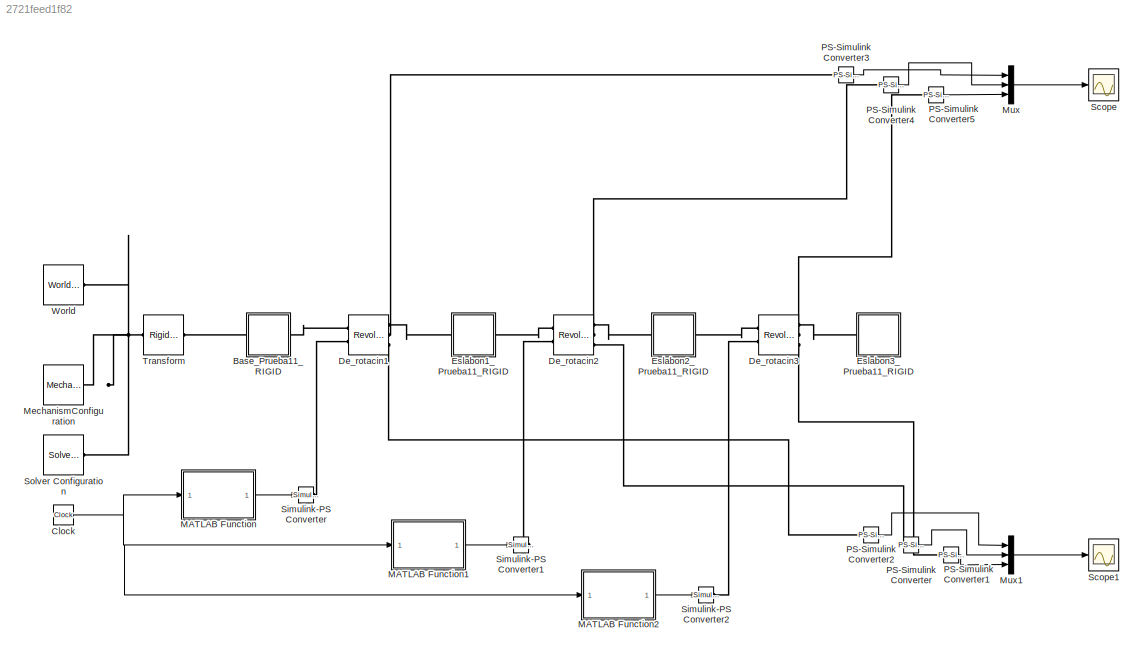
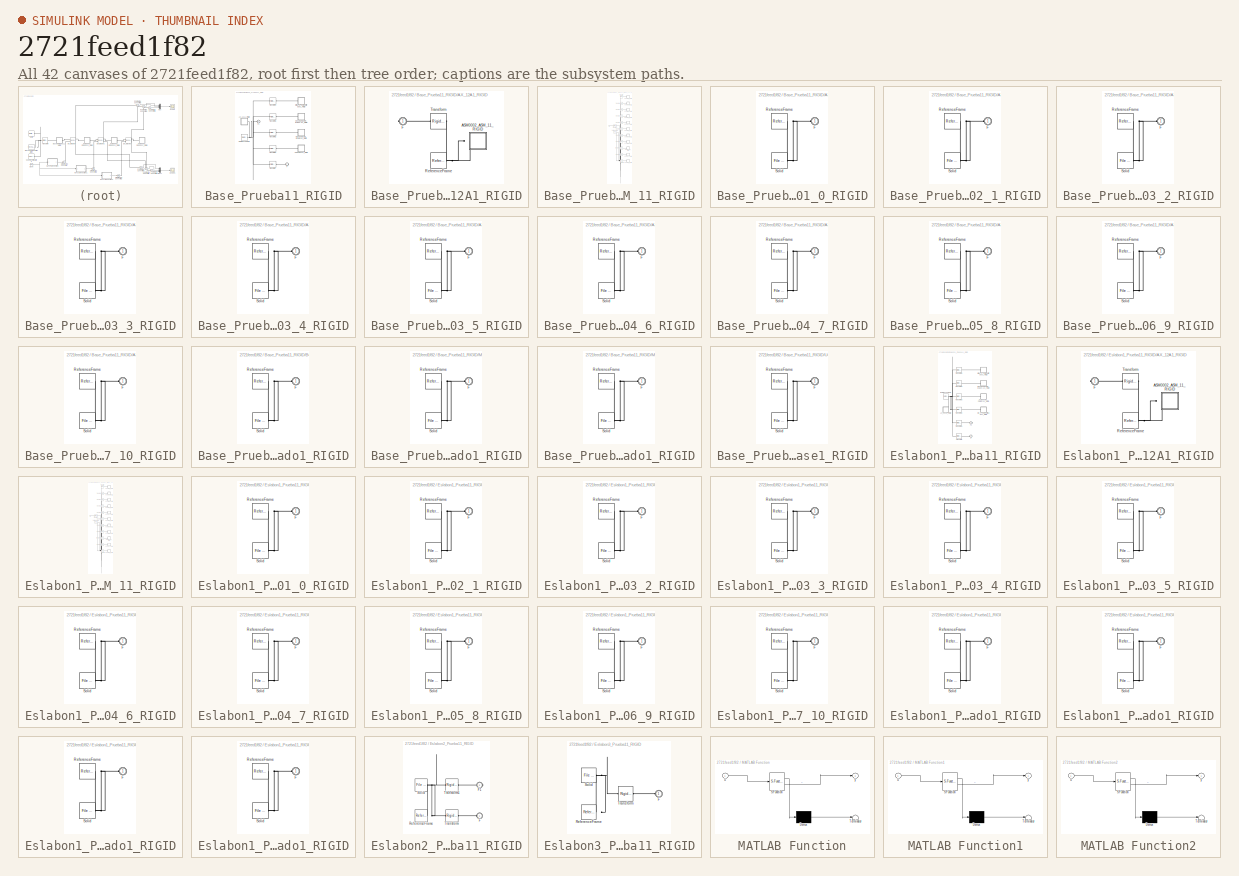
[diagram: thumbnail index - all 42 canvases of the model, root first then tree order]
MODEL slx_2721feed1f82
KIND model
CONFIG AbsTol = auto
CONFIG EnableMultiTasking = off
CONFIG FixedStep = auto
CONFIG MaxStep = auto
CONFIG MinStep = auto
CONFIG RelTol = 1e-3
CONFIG SampleTimeConstraint = Unconstrained
CONFIG SolverName = VariableStepAuto
CONFIG StartTime = 0.0
CONFIG StopTime = 10.0
WORKSPACE source: external: MATLAB File  (data not in archive)
BLOCK [SubSystem] Base_Prueba11_RIGID
  Ports = [0, 0, 0, 0, 0, 1, 1]
  RequestExecContextInheritance = off
BLOCK [SubSystem] Base_Prueba11_RIGID/AX_12A1_RIGID
  Ports = [0, 0, 0, 0, 0, 0, 1]
  RequestExecContextInheritance = off
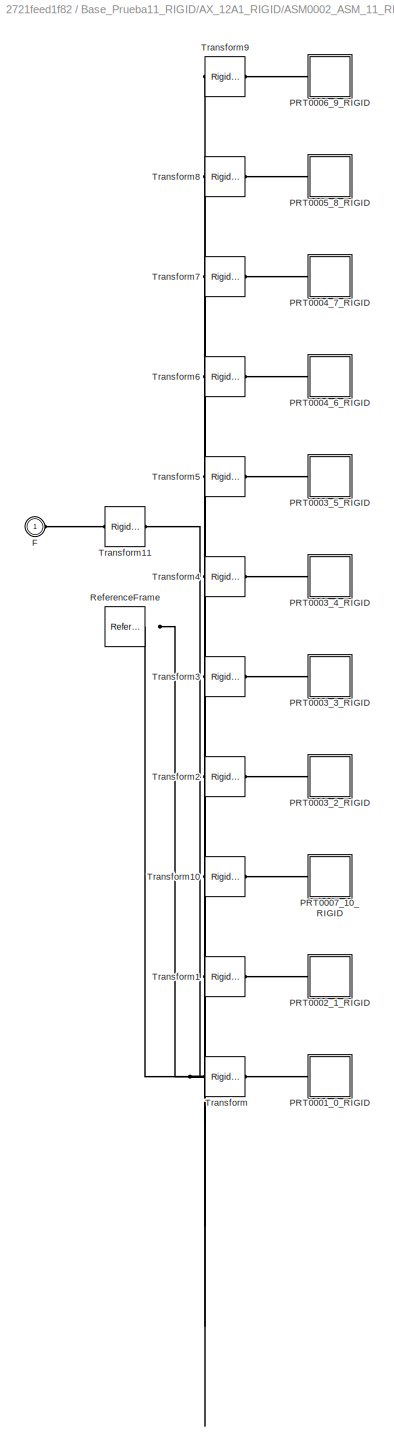
BLOCK [SubSystem] Base_Prueba11_RIGID/AX_12A1_RIGID/ASM0002_ASM_11_RIGID
  Ports = [0, 0, 0, 0, 0, 1]
  RequestExecContextInheritance = off
BLOCK [PMIOPort] Base_Prueba11_RIGID/AX_12A1_RIGID/ASM0002_ASM_11_RIGID/F
  Side = Left
BLOCK [SubSystem] Base_Prueba11_RIGID/AX_12A1_RIGID/ASM0002_ASM_11_RIGID/PRT0001_0_RIGID
  Ports = [0, 0, 0, 0, 0, 1]
  RequestExecContextInheritance = off
BLOCK [PMIOPort] Base_Prueba11_RIGID/AX_12A1_RIGID/ASM0002_ASM_11_RIGID/PRT0001_0_RIGID/F
  Side = Left
BLOCK [Reference] Base_Prueba11_RIGID/AX_12A1_RIGID/ASM0002_ASM_11_RIGID/PRT0001_0_RIGID/ReferenceFrame  REF=sm_lib/Frames and
Transforms/Reference
Frame
  Ports = [0, 0, 0, 0, 0, 0, 1]
  SourceBlock = sm_lib/Frames and\nTransforms/Reference\nFrame
  SourceProductBaseCode = MS
  SourceType = Reference\nFrame
BLOCK [Reference] Base_Prueba11_RIGID/AX_12A1_RIGID/ASM0002_ASM_11_RIGID/PRT0001_0_RIGID/Solid  REF=sm_lib/Body Elements/File Solid
  Ports = [0, 0, 0, 0, 0, 0, 1]
  SourceBlock = sm_lib/Body Elements/File Solid
  SourceProductBaseCode = MS
  SourceType = File Solid
BLOCK [SubSystem] Base_Prueba11_RIGID/AX_12A1_RIGID/ASM0002_ASM_11_RIGID/PRT0002_1_RIGID
  Ports = [0, 0, 0, 0, 0, 1]
  RequestExecContextInheritance = off
BLOCK [PMIOPort] Base_Prueba11_RIGID/AX_12A1_RIGID/ASM0002_ASM_11_RIGID/PRT0002_1_RIGID/F
  Side = Left
BLOCK [Reference] Base_Prueba11_RIGID/AX_12A1_RIGID/ASM0002_ASM_11_RIGID/PRT0002_1_RIGID/ReferenceFrame  REF=sm_lib/Frames and
Transforms/Reference
Frame
  Ports = [0, 0, 0, 0, 0, 0, 1]
  SourceBlock = sm_lib/Frames and\nTransforms/Reference\nFrame
  SourceProductBaseCode = MS
  SourceType = Reference\nFrame
BLOCK [Reference] Base_Prueba11_RIGID/AX_12A1_RIGID/ASM0002_ASM_11_RIGID/PRT0002_1_RIGID/Solid  REF=sm_lib/Body Elements/File Solid
  Ports = [0, 0, 0, 0, 0, 0, 1]
  SourceBlock = sm_lib/Body Elements/File Solid
  SourceProductBaseCode = MS
  SourceType = File Solid
BLOCK [SubSystem] Base_Prueba11_RIGID/AX_12A1_RIGID/ASM0002_ASM_11_RIGID/PRT0003_2_RIGID
  Ports = [0, 0, 0, 0, 0, 1]
  RequestExecContextInheritance = off
BLOCK [PMIOPort] Base_Prueba11_RIGID/AX_12A1_RIGID/ASM0002_ASM_11_RIGID/PRT0003_2_RIGID/F
  Side = Left
BLOCK [Reference] Base_Prueba11_RIGID/AX_12A1_RIGID/ASM0002_ASM_11_RIGID/PRT0003_2_RIGID/ReferenceFrame  REF=sm_lib/Frames and
Transforms/Reference
Frame
  Ports = [0, 0, 0, 0, 0, 0, 1]
  SourceBlock = sm_lib/Frames and\nTransforms/Reference\nFrame
  SourceProductBaseCode = MS
  SourceType = Reference\nFrame
BLOCK [Reference] Base_Prueba11_RIGID/AX_12A1_RIGID/ASM0002_ASM_11_RIGID/PRT0003_2_RIGID/Solid  REF=sm_lib/Body Elements/File Solid
  Ports = [0, 0, 0, 0, 0, 0, 1]
  SourceBlock = sm_lib/Body Elements/File Solid
  SourceProductBaseCode = MS
  SourceType = File Solid
BLOCK [SubSystem] Base_Prueba11_RIGID/AX_12A1_RIGID/ASM0002_ASM_11_RIGID/PRT0003_3_RIGID
  Ports = [0, 0, 0, 0, 0, 1]
  RequestExecContextInheritance = off
BLOCK [PMIOPort] Base_Prueba11_RIGID/AX_12A1_RIGID/ASM0002_ASM_11_RIGID/PRT0003_3_RIGID/F
  Side = Left
BLOCK [Reference] Base_Prueba11_RIGID/AX_12A1_RIGID/ASM0002_ASM_11_RIGID/PRT0003_3_RIGID/ReferenceFrame  REF=sm_lib/Frames and
Transforms/Reference
Frame
  Ports = [0, 0, 0, 0, 0, 0, 1]
  SourceBlock = sm_lib/Frames and\nTransforms/Reference\nFrame
  SourceProductBaseCode = MS
  SourceType = Reference\nFrame
BLOCK [Reference] Base_Prueba11_RIGID/AX_12A1_RIGID/ASM0002_ASM_11_RIGID/PRT0003_3_RIGID/Solid  REF=sm_lib/Body Elements/File Solid
  Ports = [0, 0, 0, 0, 0, 0, 1]
  SourceBlock = sm_lib/Body Elements/File Solid
  SourceProductBaseCode = MS
  SourceType = File Solid
BLOCK [SubSystem] Base_Prueba11_RIGID/AX_12A1_RIGID/ASM0002_ASM_11_RIGID/PRT0003_4_RIGID
  Ports = [0, 0, 0, 0, 0, 1]
  RequestExecContextInheritance = off
BLOCK [PMIOPort] Base_Prueba11_RIGID/AX_12A1_RIGID/ASM0002_ASM_11_RIGID/PRT0003_4_RIGID/F
  Side = Left
BLOCK [Reference] Base_Prueba11_RIGID/AX_12A1_RIGID/ASM0002_ASM_11_RIGID/PRT0003_4_RIGID/ReferenceFrame  REF=sm_lib/Frames and
Transforms/Reference
Frame
  Ports = [0, 0, 0, 0, 0, 0, 1]
  SourceBlock = sm_lib/Frames and\nTransforms/Reference\nFrame
  SourceProductBaseCode = MS
  SourceType = Reference\nFrame
BLOCK [Reference] Base_Prueba11_RIGID/AX_12A1_RIGID/ASM0002_ASM_11_RIGID/PRT0003_4_RIGID/Solid  REF=sm_lib/Body Elements/File Solid
  Ports = [0, 0, 0, 0, 0, 0, 1]
  SourceBlock = sm_lib/Body Elements/File Solid
  SourceProductBaseCode = MS
  SourceType = File Solid
BLOCK [SubSystem] Base_Prueba11_RIGID/AX_12A1_RIGID/ASM0002_ASM_11_RIGID/PRT0003_5_RIGID
  Ports = [0, 0, 0, 0, 0, 1]
  RequestExecContextInheritance = off
BLOCK [PMIOPort] Base_Prueba11_RIGID/AX_12A1_RIGID/ASM0002_ASM_11_RIGID/PRT0003_5_RIGID/F
  Side = Left
BLOCK [Reference] Base_Prueba11_RIGID/AX_12A1_RIGID/ASM0002_ASM_11_RIGID/PRT0003_5_RIGID/ReferenceFrame  REF=sm_lib/Frames and
Transforms/Reference
Frame
  Ports = [0, 0, 0, 0, 0, 0, 1]
  SourceBlock = sm_lib/Frames and\nTransforms/Reference\nFrame
  SourceProductBaseCode = MS
  SourceType = Reference\nFrame
BLOCK [Reference] Base_Prueba11_RIGID/AX_12A1_RIGID/ASM0002_ASM_11_RIGID/PRT0003_5_RIGID/Solid  REF=sm_lib/Body Elements/File Solid
  Ports = [0, 0, 0, 0, 0, 0, 1]
  SourceBlock = sm_lib/Body Elements/File Solid
  SourceProductBaseCode = MS
  SourceType = File Solid
BLOCK [SubSystem] Base_Prueba11_RIGID/AX_12A1_RIGID/ASM0002_ASM_11_RIGID/PRT0004_6_RIGID
  Ports = [0, 0, 0, 0, 0, 1]
  RequestExecContextInheritance = off
BLOCK [PMIOPort] Base_Prueba11_RIGID/AX_12A1_RIGID/ASM0002_ASM_11_RIGID/PRT0004_6_RIGID/F
  Side = Left
BLOCK [Reference] Base_Prueba11_RIGID/AX_12A1_RIGID/ASM0002_ASM_11_RIGID/PRT0004_6_RIGID/ReferenceFrame  REF=sm_lib/Frames and
Transforms/Reference
Frame
  Ports = [0, 0, 0, 0, 0, 0, 1]
  SourceBlock = sm_lib/Frames and\nTransforms/Reference\nFrame
  SourceProductBaseCode = MS
  SourceType = Reference\nFrame
BLOCK [Reference] Base_Prueba11_RIGID/AX_12A1_RIGID/ASM0002_ASM_11_RIGID/PRT0004_6_RIGID/Solid  REF=sm_lib/Body Elements/File Solid
  Ports = [0, 0, 0, 0, 0, 0, 1]
  SourceBlock = sm_lib/Body Elements/File Solid
  SourceProductBaseCode = MS
  SourceType = File Solid
BLOCK [SubSystem] Base_Prueba11_RIGID/AX_12A1_RIGID/ASM0002_ASM_11_RIGID/PRT0004_7_RIGID
  Ports = [0, 0, 0, 0, 0, 1]
  RequestExecContextInheritance = off
BLOCK [PMIOPort] Base_Prueba11_RIGID/AX_12A1_RIGID/ASM0002_ASM_11_RIGID/PRT0004_7_RIGID/F
  Side = Left
BLOCK [Reference] Base_Prueba11_RIGID/AX_12A1_RIGID/ASM0002_ASM_11_RIGID/PRT0004_7_RIGID/ReferenceFrame  REF=sm_lib/Frames and
Transforms/Reference
Frame
  Ports = [0, 0, 0, 0, 0, 0, 1]
  SourceBlock = sm_lib/Frames and\nTransforms/Reference\nFrame
  SourceProductBaseCode = MS
  SourceType = Reference\nFrame
BLOCK [Reference] Base_Prueba11_RIGID/AX_12A1_RIGID/ASM0002_ASM_11_RIGID/PRT0004_7_RIGID/Solid  REF=sm_lib/Body Elements/File Solid
  Ports = [0, 0, 0, 0, 0, 0, 1]
  SourceBlock = sm_lib/Body Elements/File Solid
  SourceProductBaseCode = MS
  SourceType = File Solid
BLOCK [SubSystem] Base_Prueba11_RIGID/AX_12A1_RIGID/ASM0002_ASM_11_RIGID/PRT0005_8_RIGID
  Ports = [0, 0, 0, 0, 0, 1]
  RequestExecContextInheritance = off
BLOCK [PMIOPort] Base_Prueba11_RIGID/AX_12A1_RIGID/ASM0002_ASM_11_RIGID/PRT0005_8_RIGID/F
  Side = Left
BLOCK [Reference] Base_Prueba11_RIGID/AX_12A1_RIGID/ASM0002_ASM_11_RIGID/PRT0005_8_RIGID/ReferenceFrame  REF=sm_lib/Frames and
Transforms/Reference
Frame
  Ports = [0, 0, 0, 0, 0, 0, 1]
  SourceBlock = sm_lib/Frames and\nTransforms/Reference\nFrame
  SourceProductBaseCode = MS
  SourceType = Reference\nFrame
BLOCK [Reference] Base_Prueba11_RIGID/AX_12A1_RIGID/ASM0002_ASM_11_RIGID/PRT0005_8_RIGID/Solid  REF=sm_lib/Body Elements/File Solid
  Ports = [0, 0, 0, 0, 0, 0, 1]
  SourceBlock = sm_lib/Body Elements/File Solid
  SourceProductBaseCode = MS
  SourceType = File Solid
BLOCK [SubSystem] Base_Prueba11_RIGID/AX_12A1_RIGID/ASM0002_ASM_11_RIGID/PRT0006_9_RIGID
  Ports = [0, 0, 0, 0, 0, 1]
  RequestExecContextInheritance = off
BLOCK [PMIOPort] Base_Prueba11_RIGID/AX_12A1_RIGID/ASM0002_ASM_11_RIGID/PRT0006_9_RIGID/F
  Side = Left
BLOCK [Reference] Base_Prueba11_RIGID/AX_12A1_RIGID/ASM0002_ASM_11_RIGID/PRT0006_9_RIGID/ReferenceFrame  REF=sm_lib/Frames and
Transforms/Reference
Frame
  Ports = [0, 0, 0, 0, 0, 0, 1]
  SourceBlock = sm_lib/Frames and\nTransforms/Reference\nFrame
  SourceProductBaseCode = MS
  SourceType = Reference\nFrame
BLOCK [Reference] Base_Prueba11_RIGID/AX_12A1_RIGID/ASM0002_ASM_11_RIGID/PRT0006_9_RIGID/Solid  REF=sm_lib/Body Elements/File Solid
  Ports = [0, 0, 0, 0, 0, 0, 1]
  SourceBlock = sm_lib/Body Elements/File Solid
  SourceProductBaseCode = MS
  SourceType = File Solid
BLOCK [SubSystem] Base_Prueba11_RIGID/AX_12A1_RIGID/ASM0002_ASM_11_RIGID/PRT0007_10_RIGID
  Ports = [0, 0, 0, 0, 0, 1]
  RequestExecContextInheritance = off
BLOCK [PMIOPort] Base_Prueba11_RIGID/AX_12A1_RIGID/ASM0002_ASM_11_RIGID/PRT0007_10_RIGID/F
  Side = Left
BLOCK [Reference] Base_Prueba11_RIGID/AX_12A1_RIGID/ASM0002_ASM_11_RIGID/PRT0007_10_RIGID/ReferenceFrame  REF=sm_lib/Frames and
Transforms/Reference
Frame
  Ports = [0, 0, 0, 0, 0, 0, 1]
  SourceBlock = sm_lib/Frames and\nTransforms/Reference\nFrame
  SourceProductBaseCode = MS
  SourceType = Reference\nFrame
BLOCK [Reference] Base_Prueba11_RIGID/AX_12A1_RIGID/ASM0002_ASM_11_RIGID/PRT0007_10_RIGID/Solid  REF=sm_lib/Body Elements/File Solid
  Ports = [0, 0, 0, 0, 0, 0, 1]
  SourceBlock = sm_lib/Body Elements/File Solid
  SourceProductBaseCode = MS
  SourceType = File Solid
BLOCK [Reference] Base_Prueba11_RIGID/AX_12A1_RIGID/ASM0002_ASM_11_RIGID/ReferenceFrame  REF=sm_lib/Frames and
Transforms/Reference
Frame
  Ports = [0, 0, 0, 0, 0, 0, 1]
  SourceBlock = sm_lib/Frames and\nTransforms/Reference\nFrame
  SourceProductBaseCode = MS
  SourceType = Reference\nFrame
BLOCK [Reference] Base_Prueba11_RIGID/AX_12A1_RIGID/ASM0002_ASM_11_RIGID/Transform  REF=sm_lib/Frames and
Transforms/Rigid
Transform
  Ports = [0, 0, 0, 0, 0, 1, 1]
  SourceBlock = sm_lib/Frames and\nTransforms/Rigid\nTransform
  SourceProductBaseCode = MS
  SourceType = Rigid\nTransform
BLOCK [Reference] Base_Prueba11_RIGID/AX_12A1_RIGID/ASM0002_ASM_11_RIGID/Transform1  REF=sm_lib/Frames and
Transforms/Rigid
Transform
  Ports = [0, 0, 0, 0, 0, 1, 1]
  SourceBlock = sm_lib/Frames and\nTransforms/Rigid\nTransform
  SourceProductBaseCode = MS
  SourceType = Rigid\nTransform
BLOCK [Reference] Base_Prueba11_RIGID/AX_12A1_RIGID/ASM0002_ASM_11_RIGID/Transform10  REF=sm_lib/Frames and
Transforms/Rigid
Transform
  Ports = [0, 0, 0, 0, 0, 1, 1]
  SourceBlock = sm_lib/Frames and\nTransforms/Rigid\nTransform
  SourceProductBaseCode = MS
  SourceType = Rigid\nTransform
BLOCK [Reference] Base_Prueba11_RIGID/AX_12A1_RIGID/ASM0002_ASM_11_RIGID/Transform11  REF=sm_lib/Frames and
Transforms/Rigid
Transform
  Ports = [0, 0, 0, 0, 0, 1, 1]
  SourceBlock = sm_lib/Frames and\nTransforms/Rigid\nTransform
  SourceProductBaseCode = MS
  SourceType = Rigid\nTransform
BLOCK [Reference] Base_Prueba11_RIGID/AX_12A1_RIGID/ASM0002_ASM_11_RIGID/Transform2  REF=sm_lib/Frames and
Transforms/Rigid
Transform
  Ports = [0, 0, 0, 0, 0, 1, 1]
  SourceBlock = sm_lib/Frames and\nTransforms/Rigid\nTransform
  SourceProductBaseCode = MS
  SourceType = Rigid\nTransform
BLOCK [Reference] Base_Prueba11_RIGID/AX_12A1_RIGID/ASM0002_ASM_11_RIGID/Transform3  REF=sm_lib/Frames and
Transforms/Rigid
Transform
  Ports = [0, 0, 0, 0, 0, 1, 1]
  SourceBlock = sm_lib/Frames and\nTransforms/Rigid\nTransform
  SourceProductBaseCode = MS
  SourceType = Rigid\nTransform
BLOCK [Reference] Base_Prueba11_RIGID/AX_12A1_RIGID/ASM0002_ASM_11_RIGID/Transform4  REF=sm_lib/Frames and
Transforms/Rigid
Transform
  Ports = [0, 0, 0, 0, 0, 1, 1]
  SourceBlock = sm_lib/Frames and\nTransforms/Rigid\nTransform
  SourceProductBaseCode = MS
  SourceType = Rigid\nTransform
BLOCK [Reference] Base_Prueba11_RIGID/AX_12A1_RIGID/ASM0002_ASM_11_RIGID/Transform5  REF=sm_lib/Frames and
Transforms/Rigid
Transform
  Ports = [0, 0, 0, 0, 0, 1, 1]
  SourceBlock = sm_lib/Frames and\nTransforms/Rigid\nTransform
  SourceProductBaseCode = MS
  SourceType = Rigid\nTransform
BLOCK [Reference] Base_Prueba11_RIGID/AX_12A1_RIGID/ASM0002_ASM_11_RIGID/Transform6  REF=sm_lib/Frames and
Transforms/Rigid
Transform
  Ports = [0, 0, 0, 0, 0, 1, 1]
  SourceBlock = sm_lib/Frames and\nTransforms/Rigid\nTransform
  SourceProductBaseCode = MS
  SourceType = Rigid\nTransform
BLOCK [Reference] Base_Prueba11_RIGID/AX_12A1_RIGID/ASM0002_ASM_11_RIGID/Transform7  REF=sm_lib/Frames and
Transforms/Rigid
Transform
  Ports = [0, 0, 0, 0, 0, 1, 1]
  SourceBlock = sm_lib/Frames and\nTransforms/Rigid\nTransform
  SourceProductBaseCode = MS
  SourceType = Rigid\nTransform
BLOCK [Reference] Base_Prueba11_RIGID/AX_12A1_RIGID/ASM0002_ASM_11_RIGID/Transform8  REF=sm_lib/Frames and
Transforms/Rigid
Transform
  Ports = [0, 0, 0, 0, 0, 1, 1]
  SourceBlock = sm_lib/Frames and\nTransforms/Rigid\nTransform
  SourceProductBaseCode = MS
  SourceType = Rigid\nTransform
BLOCK [Reference] Base_Prueba11_RIGID/AX_12A1_RIGID/ASM0002_ASM_11_RIGID/Transform9  REF=sm_lib/Frames and
Transforms/Rigid
Transform
  Ports = [0, 0, 0, 0, 0, 1, 1]
  SourceBlock = sm_lib/Frames and\nTransforms/Rigid\nTransform
  SourceProductBaseCode = MS
  SourceType = Rigid\nTransform
BLOCK [PMIOPort] Base_Prueba11_RIGID/AX_12A1_RIGID/F
  Side = Right
BLOCK [Reference] Base_Prueba11_RIGID/AX_12A1_RIGID/ReferenceFrame  REF=sm_lib/Frames and
Transforms/Reference
Frame
  Ports = [0, 0, 0, 0, 0, 0, 1]
  SourceBlock = sm_lib/Frames and\nTransforms/Reference\nFrame
  SourceProductBaseCode = MS
  SourceType = Reference\nFrame
BLOCK [Reference] Base_Prueba11_RIGID/AX_12A1_RIGID/Transform  REF=sm_lib/Frames and
Transforms/Rigid
Transform
  Ports = [0, 0, 0, 0, 0, 1, 1]
  SourceBlock = sm_lib/Frames and\nTransforms/Rigid\nTransform
  SourceProductBaseCode = MS
  SourceType = Rigid\nTransform
BLOCK [SubSystem] Base_Prueba11_RIGID/Brida_5_parametrizado1_RIGID
  Ports = [0, 0, 0, 0, 0, 1]
  RequestExecContextInheritance = off
BLOCK [PMIOPort] Base_Prueba11_RIGID/Brida_5_parametrizado1_RIGID/F
  Side = Left
BLOCK [Reference] Base_Prueba11_RIGID/Brida_5_parametrizado1_RIGID/ReferenceFrame  REF=sm_lib/Frames and
Transforms/Reference
Frame
  Ports = [0, 0, 0, 0, 0, 0, 1]
  SourceBlock = sm_lib/Frames and\nTransforms/Reference\nFrame
  SourceProductBaseCode = MS
  SourceType = Reference\nFrame
BLOCK [Reference] Base_Prueba11_RIGID/Brida_5_parametrizado1_RIGID/Solid  REF=sm_lib/Body Elements/File Solid
  Ports = [0, 0, 0, 0, 0, 0, 1]
  SourceBlock = sm_lib/Body Elements/File Solid
  SourceProductBaseCode = MS
  SourceType = File Solid
BLOCK [PMIOPort] Base_Prueba11_RIGID/F
  Port = 2
  Side = Right
BLOCK [PMIOPort] Base_Prueba11_RIGID/F1
  Side = Left
BLOCK [SubSystem] Base_Prueba11_RIGID/ModuloDelantero_Eslabones_3_Parametrizado1_RIGID
  Ports = [0, 0, 0, 0, 0, 1]
  RequestExecContextInheritance = off
BLOCK [PMIOPort] Base_Prueba11_RIGID/ModuloDelantero_Eslabones_3_Parametrizado1_RIGID/F
  Side = Left
BLOCK [Reference] Base_Prueba11_RIGID/ModuloDelantero_Eslabones_3_Parametrizado1_RIGID/ReferenceFrame  REF=sm_lib/Frames and
Transforms/Reference
Frame
  Ports = [0, 0, 0, 0, 0, 0, 1]
  SourceBlock = sm_lib/Frames and\nTransforms/Reference\nFrame
  SourceProductBaseCode = MS
  SourceType = Reference\nFrame
BLOCK [Reference] Base_Prueba11_RIGID/ModuloDelantero_Eslabones_3_Parametrizado1_RIGID/Solid  REF=sm_lib/Body Elements/File Solid
  Ports = [0, 0, 0, 0, 0, 0, 1]
  SourceBlock = sm_lib/Body Elements/File Solid
  SourceProductBaseCode = MS
  SourceType = File Solid
BLOCK [SubSystem] Base_Prueba11_RIGID/ModuloTrasero_circular4_Parametrizado1_RIGID
  Ports = [0, 0, 0, 0, 0, 1]
  RequestExecContextInheritance = off
BLOCK [PMIOPort] Base_Prueba11_RIGID/ModuloTrasero_circular4_Parametrizado1_RIGID/F
  Side = Left
BLOCK [Reference] Base_Prueba11_RIGID/ModuloTrasero_circular4_Parametrizado1_RIGID/ReferenceFrame  REF=sm_lib/Frames and
Transforms/Reference
Frame
  Ports = [0, 0, 0, 0, 0, 0, 1]
  SourceBlock = sm_lib/Frames and\nTransforms/Reference\nFrame
  SourceProductBaseCode = MS
  SourceType = Reference\nFrame
BLOCK [Reference] Base_Prueba11_RIGID/ModuloTrasero_circular4_Parametrizado1_RIGID/Solid  REF=sm_lib/Body Elements/File Solid
  Ports = [0, 0, 0, 0, 0, 0, 1]
  SourceBlock = sm_lib/Body Elements/File Solid
  SourceProductBaseCode = MS
  SourceType = File Solid
BLOCK [Reference] Base_Prueba11_RIGID/ReferenceFrame  REF=sm_lib/Frames and
Transforms/Reference
Frame
  Ports = [0, 0, 0, 0, 0, 0, 1]
  SourceBlock = sm_lib/Frames and\nTransforms/Reference\nFrame
  SourceProductBaseCode = MS
  SourceType = Reference\nFrame
BLOCK [Reference] Base_Prueba11_RIGID/Transform  REF=sm_lib/Frames and
Transforms/Rigid
Transform
  Ports = [0, 0, 0, 0, 0, 1, 1]
  SourceBlock = sm_lib/Frames and\nTransforms/Rigid\nTransform
  SourceProductBaseCode = MS
  SourceType = Rigid\nTransform
BLOCK [Reference] Base_Prueba11_RIGID/Transform1  REF=sm_lib/Frames and
Transforms/Rigid
Transform
  Ports = [0, 0, 0, 0, 0, 1, 1]
  SourceBlock = sm_lib/Frames and\nTransforms/Rigid\nTransform
  SourceProductBaseCode = MS
  SourceType = Rigid\nTransform
BLOCK [Reference] Base_Prueba11_RIGID/Transform2  REF=sm_lib/Frames and
Transforms/Rigid
Transform
  Ports = [0, 0, 0, 0, 0, 1, 1]
  SourceBlock = sm_lib/Frames and\nTransforms/Rigid\nTransform
  SourceProductBaseCode = MS
  SourceType = Rigid\nTransform
BLOCK [Reference] Base_Prueba11_RIGID/Transform3  REF=sm_lib/Frames and
Transforms/Rigid
Transform
  Ports = [0, 0, 0, 0, 0, 1, 1]
  SourceBlock = sm_lib/Frames and\nTransforms/Rigid\nTransform
  SourceProductBaseCode = MS
  SourceType = Rigid\nTransform
BLOCK [Reference] Base_Prueba11_RIGID/Transform4  REF=sm_lib/Frames and
Transforms/Rigid
Transform
  Ports = [0, 0, 0, 0, 0, 1, 1]
  SourceBlock = sm_lib/Frames and\nTransforms/Rigid\nTransform
  SourceProductBaseCode = MS
  SourceType = Rigid\nTransform
BLOCK [SubSystem] Base_Prueba11_RIGID/UnionBase1_RIGID
  Ports = [0, 0, 0, 0, 0, 1]
  RequestExecContextInheritance = off
BLOCK [PMIOPort] Base_Prueba11_RIGID/UnionBase1_RIGID/F
  Side = Left
BLOCK [Reference] Base_Prueba11_RIGID/UnionBase1_RIGID/ReferenceFrame  REF=sm_lib/Frames and
Transforms/Reference
Frame
  Ports = [0, 0, 0, 0, 0, 0, 1]
  SourceBlock = sm_lib/Frames and\nTransforms/Reference\nFrame
  SourceProductBaseCode = MS
  SourceType = Reference\nFrame
BLOCK [Reference] Base_Prueba11_RIGID/UnionBase1_RIGID/Solid  REF=sm_lib/Body Elements/File Solid
  Ports = [0, 0, 0, 0, 0, 0, 1]
  SourceBlock = sm_lib/Body Elements/File Solid
  SourceProductBaseCode = MS
  SourceType = File Solid
BLOCK [Clock] Clock
BLOCK [Reference] De_rotacin1  REF=sm_lib/Joints/Revolute Joint
  Ports = [0, 0, 0, 0, 0, 2, 3]
  SourceBlock = sm_lib/Joints/Revolute Joint
  SourceProductBaseCode = MS
  SourceType = Revolute Joint
BLOCK [Reference] De_rotacin2  REF=sm_lib/Joints/Revolute Joint
  Ports = [0, 0, 0, 0, 0, 2, 3]
  SourceBlock = sm_lib/Joints/Revolute Joint
  SourceProductBaseCode = MS
  SourceType = Revolute Joint
BLOCK [Reference] De_rotacin3  REF=sm_lib/Joints/Revolute Joint
  Ports = [0, 0, 0, 0, 0, 2, 3]
  SourceBlock = sm_lib/Joints/Revolute Joint
  SourceProductBaseCode = MS
  SourceType = Revolute Joint
BLOCK [SubSystem] Eslabon1_Prueba11_RIGID
  Ports = [0, 0, 0, 0, 0, 1, 1]
  RequestExecContextInheritance = off
BLOCK [SubSystem] Eslabon1_Prueba11_RIGID/AX_12A1_RIGID
  Ports = [0, 0, 0, 0, 0, 0, 1]
  RequestExecContextInheritance = off
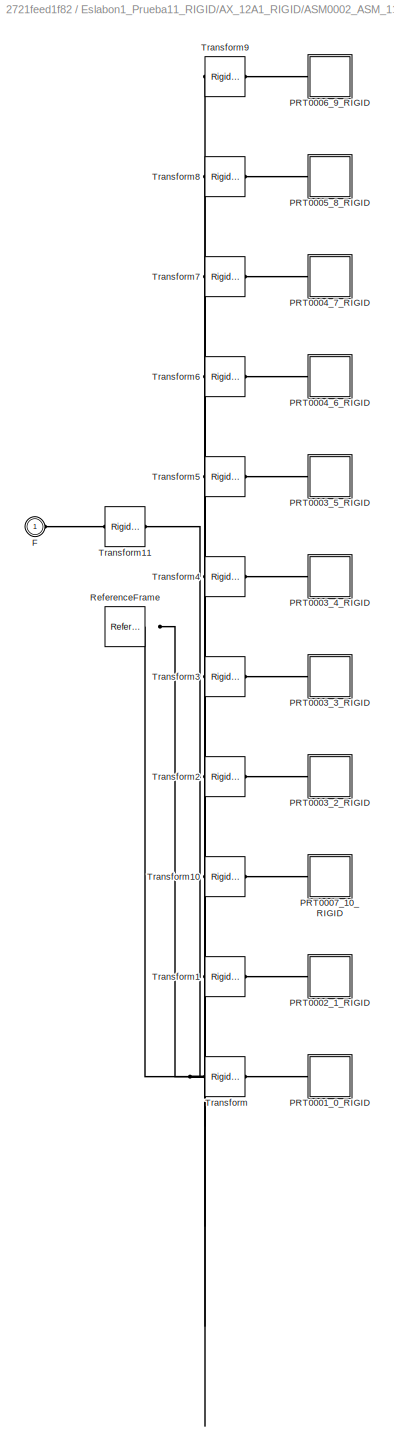
BLOCK [SubSystem] Eslabon1_Prueba11_RIGID/AX_12A1_RIGID/ASM0002_ASM_11_RIGID
  Ports = [0, 0, 0, 0, 0, 1]
  RequestExecContextInheritance = off
BLOCK [PMIOPort] Eslabon1_Prueba11_RIGID/AX_12A1_RIGID/ASM0002_ASM_11_RIGID/F
  Side = Left
BLOCK [SubSystem] Eslabon1_Prueba11_RIGID/AX_12A1_RIGID/ASM0002_ASM_11_RIGID/PRT0001_0_RIGID
  Ports = [0, 0, 0, 0, 0, 1]
  RequestExecContextInheritance = off
BLOCK [PMIOPort] Eslabon1_Prueba11_RIGID/AX_12A1_RIGID/ASM0002_ASM_11_RIGID/PRT0001_0_RIGID/F
  Side = Left
BLOCK [Reference] Eslabon1_Prueba11_RIGID/AX_12A1_RIGID/ASM0002_ASM_11_RIGID/PRT0001_0_RIGID/ReferenceFrame  REF=sm_lib/Frames and
Transforms/Reference
Frame
  Ports = [0, 0, 0, 0, 0, 0, 1]
  SourceBlock = sm_lib/Frames and\nTransforms/Reference\nFrame
  SourceProductBaseCode = MS
  SourceType = Reference\nFrame
BLOCK [Reference] Eslabon1_Prueba11_RIGID/AX_12A1_RIGID/ASM0002_ASM_11_RIGID/PRT0001_0_RIGID/Solid  REF=sm_lib/Body Elements/File Solid
  Ports = [0, 0, 0, 0, 0, 0, 1]
  SourceBlock = sm_lib/Body Elements/File Solid
  SourceProductBaseCode = MS
  SourceType = File Solid
BLOCK [SubSystem] Eslabon1_Prueba11_RIGID/AX_12A1_RIGID/ASM0002_ASM_11_RIGID/PRT0002_1_RIGID
  Ports = [0, 0, 0, 0, 0, 1]
  RequestExecContextInheritance = off
BLOCK [PMIOPort] Eslabon1_Prueba11_RIGID/AX_12A1_RIGID/ASM0002_ASM_11_RIGID/PRT0002_1_RIGID/F
  Side = Left
BLOCK [Reference] Eslabon1_Prueba11_RIGID/AX_12A1_RIGID/ASM0002_ASM_11_RIGID/PRT0002_1_RIGID/ReferenceFrame  REF=sm_lib/Frames and
Transforms/Reference
Frame
  Ports = [0, 0, 0, 0, 0, 0, 1]
  SourceBlock = sm_lib/Frames and\nTransforms/Reference\nFrame
  SourceProductBaseCode = MS
  SourceType = Reference\nFrame
BLOCK [Reference] Eslabon1_Prueba11_RIGID/AX_12A1_RIGID/ASM0002_ASM_11_RIGID/PRT0002_1_RIGID/Solid  REF=sm_lib/Body Elements/File Solid
  Ports = [0, 0, 0, 0, 0, 0, 1]
  SourceBlock = sm_lib/Body Elements/File Solid
  SourceProductBaseCode = MS
  SourceType = File Solid
BLOCK [SubSystem] Eslabon1_Prueba11_RIGID/AX_12A1_RIGID/ASM0002_ASM_11_RIGID/PRT0003_2_RIGID
  Ports = [0, 0, 0, 0, 0, 1]
  RequestExecContextInheritance = off
BLOCK [PMIOPort] Eslabon1_Prueba11_RIGID/AX_12A1_RIGID/ASM0002_ASM_11_RIGID/PRT0003_2_RIGID/F
  Side = Left
BLOCK [Reference] Eslabon1_Prueba11_RIGID/AX_12A1_RIGID/ASM0002_ASM_11_RIGID/PRT0003_2_RIGID/ReferenceFrame  REF=sm_lib/Frames and
Transforms/Reference
Frame
  Ports = [0, 0, 0, 0, 0, 0, 1]
  SourceBlock = sm_lib/Frames and\nTransforms/Reference\nFrame
  SourceProductBaseCode = MS
  SourceType = Reference\nFrame
BLOCK [Reference] Eslabon1_Prueba11_RIGID/AX_12A1_RIGID/ASM0002_ASM_11_RIGID/PRT0003_2_RIGID/Solid  REF=sm_lib/Body Elements/File Solid
  Ports = [0, 0, 0, 0, 0, 0, 1]
  SourceBlock = sm_lib/Body Elements/File Solid
  SourceProductBaseCode = MS
  SourceType = File Solid
BLOCK [SubSystem] Eslabon1_Prueba11_RIGID/AX_12A1_RIGID/ASM0002_ASM_11_RIGID/PRT0003_3_RIGID
  Ports = [0, 0, 0, 0, 0, 1]
  RequestExecContextInheritance = off
BLOCK [PMIOPort] Eslabon1_Prueba11_RIGID/AX_12A1_RIGID/ASM0002_ASM_11_RIGID/PRT0003_3_RIGID/F
  Side = Left
BLOCK [Reference] Eslabon1_Prueba11_RIGID/AX_12A1_RIGID/ASM0002_ASM_11_RIGID/PRT0003_3_RIGID/ReferenceFrame  REF=sm_lib/Frames and
Transforms/Reference
Frame
  Ports = [0, 0, 0, 0, 0, 0, 1]
  SourceBlock = sm_lib/Frames and\nTransforms/Reference\nFrame
  SourceProductBaseCode = MS
  SourceType = Reference\nFrame
BLOCK [Reference] Eslabon1_Prueba11_RIGID/AX_12A1_RIGID/ASM0002_ASM_11_RIGID/PRT0003_3_RIGID/Solid  REF=sm_lib/Body Elements/File Solid
  Ports = [0, 0, 0, 0, 0, 0, 1]
  SourceBlock = sm_lib/Body Elements/File Solid
  SourceProductBaseCode = MS
  SourceType = File Solid
BLOCK [SubSystem] Eslabon1_Prueba11_RIGID/AX_12A1_RIGID/ASM0002_ASM_11_RIGID/PRT0003_4_RIGID
  Ports = [0, 0, 0, 0, 0, 1]
  RequestExecContextInheritance = off
BLOCK [PMIOPort] Eslabon1_Prueba11_RIGID/AX_12A1_RIGID/ASM0002_ASM_11_RIGID/PRT0003_4_RIGID/F
  Side = Left
BLOCK [Reference] Eslabon1_Prueba11_RIGID/AX_12A1_RIGID/ASM0002_ASM_11_RIGID/PRT0003_4_RIGID/ReferenceFrame  REF=sm_lib/Frames and
Transforms/Reference
Frame
  Ports = [0, 0, 0, 0, 0, 0, 1]
  SourceBlock = sm_lib/Frames and\nTransforms/Reference\nFrame
  SourceProductBaseCode = MS
  SourceType = Reference\nFrame
BLOCK [Reference] Eslabon1_Prueba11_RIGID/AX_12A1_RIGID/ASM0002_ASM_11_RIGID/PRT0003_4_RIGID/Solid  REF=sm_lib/Body Elements/File Solid
  Ports = [0, 0, 0, 0, 0, 0, 1]
  SourceBlock = sm_lib/Body Elements/File Solid
  SourceProductBaseCode = MS
  SourceType = File Solid
BLOCK [SubSystem] Eslabon1_Prueba11_RIGID/AX_12A1_RIGID/ASM0002_ASM_11_RIGID/PRT0003_5_RIGID
  Ports = [0, 0, 0, 0, 0, 1]
  RequestExecContextInheritance = off
BLOCK [PMIOPort] Eslabon1_Prueba11_RIGID/AX_12A1_RIGID/ASM0002_ASM_11_RIGID/PRT0003_5_RIGID/F
  Side = Left
BLOCK [Reference] Eslabon1_Prueba11_RIGID/AX_12A1_RIGID/ASM0002_ASM_11_RIGID/PRT0003_5_RIGID/ReferenceFrame  REF=sm_lib/Frames and
Transforms/Reference
Frame
  Ports = [0, 0, 0, 0, 0, 0, 1]
  SourceBlock = sm_lib/Frames and\nTransforms/Reference\nFrame
  SourceProductBaseCode = MS
  SourceType = Reference\nFrame
BLOCK [Reference] Eslabon1_Prueba11_RIGID/AX_12A1_RIGID/ASM0002_ASM_11_RIGID/PRT0003_5_RIGID/Solid  REF=sm_lib/Body Elements/File Solid
  Ports = [0, 0, 0, 0, 0, 0, 1]
  SourceBlock = sm_lib/Body Elements/File Solid
  SourceProductBaseCode = MS
  SourceType = File Solid
BLOCK [SubSystem] Eslabon1_Prueba11_RIGID/AX_12A1_RIGID/ASM0002_ASM_11_RIGID/PRT0004_6_RIGID
  Ports = [0, 0, 0, 0, 0, 1]
  RequestExecContextInheritance = off
BLOCK [PMIOPort] Eslabon1_Prueba11_RIGID/AX_12A1_RIGID/ASM0002_ASM_11_RIGID/PRT0004_6_RIGID/F
  Side = Left
BLOCK [Reference] Eslabon1_Prueba11_RIGID/AX_12A1_RIGID/ASM0002_ASM_11_RIGID/PRT0004_6_RIGID/ReferenceFrame  REF=sm_lib/Frames and
Transforms/Reference
Frame
  Ports = [0, 0, 0, 0, 0, 0, 1]
  SourceBlock = sm_lib/Frames and\nTransforms/Reference\nFrame
  SourceProductBaseCode = MS
  SourceType = Reference\nFrame
BLOCK [Reference] Eslabon1_Prueba11_RIGID/AX_12A1_RIGID/ASM0002_ASM_11_RIGID/PRT0004_6_RIGID/Solid  REF=sm_lib/Body Elements/File Solid
  Ports = [0, 0, 0, 0, 0, 0, 1]
  SourceBlock = sm_lib/Body Elements/File Solid
  SourceProductBaseCode = MS
  SourceType = File Solid
BLOCK [SubSystem] Eslabon1_Prueba11_RIGID/AX_12A1_RIGID/ASM0002_ASM_11_RIGID/PRT0004_7_RIGID
  Ports = [0, 0, 0, 0, 0, 1]
  RequestExecContextInheritance = off
BLOCK [PMIOPort] Eslabon1_Prueba11_RIGID/AX_12A1_RIGID/ASM0002_ASM_11_RIGID/PRT0004_7_RIGID/F
  Side = Left
BLOCK [Reference] Eslabon1_Prueba11_RIGID/AX_12A1_RIGID/ASM0002_ASM_11_RIGID/PRT0004_7_RIGID/ReferenceFrame  REF=sm_lib/Frames and
Transforms/Reference
Frame
  Ports = [0, 0, 0, 0, 0, 0, 1]
  SourceBlock = sm_lib/Frames and\nTransforms/Reference\nFrame
  SourceProductBaseCode = MS
  SourceType = Reference\nFrame
BLOCK [Reference] Eslabon1_Prueba11_RIGID/AX_12A1_RIGID/ASM0002_ASM_11_RIGID/PRT0004_7_RIGID/Solid  REF=sm_lib/Body Elements/File Solid
  Ports = [0, 0, 0, 0, 0, 0, 1]
  SourceBlock = sm_lib/Body Elements/File Solid
  SourceProductBaseCode = MS
  SourceType = File Solid
BLOCK [SubSystem] Eslabon1_Prueba11_RIGID/AX_12A1_RIGID/ASM0002_ASM_11_RIGID/PRT0005_8_RIGID
  Ports = [0, 0, 0, 0, 0, 1]
  RequestExecContextInheritance = off
BLOCK [PMIOPort] Eslabon1_Prueba11_RIGID/AX_12A1_RIGID/ASM0002_ASM_11_RIGID/PRT0005_8_RIGID/F
  Side = Left
BLOCK [Reference] Eslabon1_Prueba11_RIGID/AX_12A1_RIGID/ASM0002_ASM_11_RIGID/PRT0005_8_RIGID/ReferenceFrame  REF=sm_lib/Frames and
Transforms/Reference
Frame
  Ports = [0, 0, 0, 0, 0, 0, 1]
  SourceBlock = sm_lib/Frames and\nTransforms/Reference\nFrame
  SourceProductBaseCode = MS
  SourceType = Reference\nFrame
BLOCK [Reference] Eslabon1_Prueba11_RIGID/AX_12A1_RIGID/ASM0002_ASM_11_RIGID/PRT0005_8_RIGID/Solid  REF=sm_lib/Body Elements/File Solid
  Ports = [0, 0, 0, 0, 0, 0, 1]
  SourceBlock = sm_lib/Body Elements/File Solid
  SourceProductBaseCode = MS
  SourceType = File Solid
BLOCK [SubSystem] Eslabon1_Prueba11_RIGID/AX_12A1_RIGID/ASM0002_ASM_11_RIGID/PRT0006_9_RIGID
  Ports = [0, 0, 0, 0, 0, 1]
  RequestExecContextInheritance = off
BLOCK [PMIOPort] Eslabon1_Prueba11_RIGID/AX_12A1_RIGID/ASM0002_ASM_11_RIGID/PRT0006_9_RIGID/F
  Side = Left
BLOCK [Reference] Eslabon1_Prueba11_RIGID/AX_12A1_RIGID/ASM0002_ASM_11_RIGID/PRT0006_9_RIGID/ReferenceFrame  REF=sm_lib/Frames and
Transforms/Reference
Frame
  Ports = [0, 0, 0, 0, 0, 0, 1]
  SourceBlock = sm_lib/Frames and\nTransforms/Reference\nFrame
  SourceProductBaseCode = MS
  SourceType = Reference\nFrame
BLOCK [Reference] Eslabon1_Prueba11_RIGID/AX_12A1_RIGID/ASM0002_ASM_11_RIGID/PRT0006_9_RIGID/Solid  REF=sm_lib/Body Elements/File Solid
  Ports = [0, 0, 0, 0, 0, 0, 1]
  SourceBlock = sm_lib/Body Elements/File Solid
  SourceProductBaseCode = MS
  SourceType = File Solid
BLOCK [SubSystem] Eslabon1_Prueba11_RIGID/AX_12A1_RIGID/ASM0002_ASM_11_RIGID/PRT0007_10_RIGID
  Ports = [0, 0, 0, 0, 0, 1]
  RequestExecContextInheritance = off
BLOCK [PMIOPort] Eslabon1_Prueba11_RIGID/AX_12A1_RIGID/ASM0002_ASM_11_RIGID/PRT0007_10_RIGID/F
  Side = Left
BLOCK [Reference] Eslabon1_Prueba11_RIGID/AX_12A1_RIGID/ASM0002_ASM_11_RIGID/PRT0007_10_RIGID/ReferenceFrame  REF=sm_lib/Frames and
Transforms/Reference
Frame
  Ports = [0, 0, 0, 0, 0, 0, 1]
  SourceBlock = sm_lib/Frames and\nTransforms/Reference\nFrame
  SourceProductBaseCode = MS
  SourceType = Reference\nFrame
BLOCK [Reference] Eslabon1_Prueba11_RIGID/AX_12A1_RIGID/ASM0002_ASM_11_RIGID/PRT0007_10_RIGID/Solid  REF=sm_lib/Body Elements/File Solid
  Ports = [0, 0, 0, 0, 0, 0, 1]
  SourceBlock = sm_lib/Body Elements/File Solid
  SourceProductBaseCode = MS
  SourceType = File Solid
BLOCK [Reference] Eslabon1_Prueba11_RIGID/AX_12A1_RIGID/ASM0002_ASM_11_RIGID/ReferenceFrame  REF=sm_lib/Frames and
Transforms/Reference
Frame
  Ports = [0, 0, 0, 0, 0, 0, 1]
  SourceBlock = sm_lib/Frames and\nTransforms/Reference\nFrame
  SourceProductBaseCode = MS
  SourceType = Reference\nFrame
BLOCK [Reference] Eslabon1_Prueba11_RIGID/AX_12A1_RIGID/ASM0002_ASM_11_RIGID/Transform  REF=sm_lib/Frames and
Transforms/Rigid
Transform
  Ports = [0, 0, 0, 0, 0, 1, 1]
  SourceBlock = sm_lib/Frames and\nTransforms/Rigid\nTransform
  SourceProductBaseCode = MS
  SourceType = Rigid\nTransform
BLOCK [Reference] Eslabon1_Prueba11_RIGID/AX_12A1_RIGID/ASM0002_ASM_11_RIGID/Transform1  REF=sm_lib/Frames and
Transforms/Rigid
Transform
  Ports = [0, 0, 0, 0, 0, 1, 1]
  SourceBlock = sm_lib/Frames and\nTransforms/Rigid\nTransform
  SourceProductBaseCode = MS
  SourceType = Rigid\nTransform
BLOCK [Reference] Eslabon1_Prueba11_RIGID/AX_12A1_RIGID/ASM0002_ASM_11_RIGID/Transform10  REF=sm_lib/Frames and
Transforms/Rigid
Transform
  Ports = [0, 0, 0, 0, 0, 1, 1]
  SourceBlock = sm_lib/Frames and\nTransforms/Rigid\nTransform
  SourceProductBaseCode = MS
  SourceType = Rigid\nTransform
BLOCK [Reference] Eslabon1_Prueba11_RIGID/AX_12A1_RIGID/ASM0002_ASM_11_RIGID/Transform11  REF=sm_lib/Frames and
Transforms/Rigid
Transform
  Ports = [0, 0, 0, 0, 0, 1, 1]
  SourceBlock = sm_lib/Frames and\nTransforms/Rigid\nTransform
  SourceProductBaseCode = MS
  SourceType = Rigid\nTransform
BLOCK [Reference] Eslabon1_Prueba11_RIGID/AX_12A1_RIGID/ASM0002_ASM_11_RIGID/Transform2  REF=sm_lib/Frames and
Transforms/Rigid
Transform
  Ports = [0, 0, 0, 0, 0, 1, 1]
  SourceBlock = sm_lib/Frames and\nTransforms/Rigid\nTransform
  SourceProductBaseCode = MS
  SourceType = Rigid\nTransform
BLOCK [Reference] Eslabon1_Prueba11_RIGID/AX_12A1_RIGID/ASM0002_ASM_11_RIGID/Transform3  REF=sm_lib/Frames and
Transforms/Rigid
Transform
  Ports = [0, 0, 0, 0, 0, 1, 1]
  SourceBlock = sm_lib/Frames and\nTransforms/Rigid\nTransform
  SourceProductBaseCode = MS
  SourceType = Rigid\nTransform
BLOCK [Reference] Eslabon1_Prueba11_RIGID/AX_12A1_RIGID/ASM0002_ASM_11_RIGID/Transform4  REF=sm_lib/Frames and
Transforms/Rigid
Transform
  Ports = [0, 0, 0, 0, 0, 1, 1]
  SourceBlock = sm_lib/Frames and\nTransforms/Rigid\nTransform
  SourceProductBaseCode = MS
  SourceType = Rigid\nTransform
BLOCK [Reference] Eslabon1_Prueba11_RIGID/AX_12A1_RIGID/ASM0002_ASM_11_RIGID/Transform5  REF=sm_lib/Frames and
Transforms/Rigid
Transform
  Ports = [0, 0, 0, 0, 0, 1, 1]
  SourceBlock = sm_lib/Frames and\nTransforms/Rigid\nTransform
  SourceProductBaseCode = MS
  SourceType = Rigid\nTransform
BLOCK [Reference] Eslabon1_Prueba11_RIGID/AX_12A1_RIGID/ASM0002_ASM_11_RIGID/Transform6  REF=sm_lib/Frames and
Transforms/Rigid
Transform
  Ports = [0, 0, 0, 0, 0, 1, 1]
  SourceBlock = sm_lib/Frames and\nTransforms/Rigid\nTransform
  SourceProductBaseCode = MS
  SourceType = Rigid\nTransform
BLOCK [Reference] Eslabon1_Prueba11_RIGID/AX_12A1_RIGID/ASM0002_ASM_11_RIGID/Transform7  REF=sm_lib/Frames and
Transforms/Rigid
Transform
  Ports = [0, 0, 0, 0, 0, 1, 1]
  SourceBlock = sm_lib/Frames and\nTransforms/Rigid\nTransform
  SourceProductBaseCode = MS
  SourceType = Rigid\nTransform
BLOCK [Reference] Eslabon1_Prueba11_RIGID/AX_12A1_RIGID/ASM0002_ASM_11_RIGID/Transform8  REF=sm_lib/Frames and
Transforms/Rigid
Transform
  Ports = [0, 0, 0, 0, 0, 1, 1]
  SourceBlock = sm_lib/Frames and\nTransforms/Rigid\nTransform
  SourceProductBaseCode = MS
  SourceType = Rigid\nTransform
BLOCK [Reference] Eslabon1_Prueba11_RIGID/AX_12A1_RIGID/ASM0002_ASM_11_RIGID/Transform9  REF=sm_lib/Frames and
Transforms/Rigid
Transform
  Ports = [0, 0, 0, 0, 0, 1, 1]
  SourceBlock = sm_lib/Frames and\nTransforms/Rigid\nTransform
  SourceProductBaseCode = MS
  SourceType = Rigid\nTransform
BLOCK [PMIOPort] Eslabon1_Prueba11_RIGID/AX_12A1_RIGID/F
  Side = Right
BLOCK [Reference] Eslabon1_Prueba11_RIGID/AX_12A1_RIGID/ReferenceFrame  REF=sm_lib/Frames and
Transforms/Reference
Frame
  Ports = [0, 0, 0, 0, 0, 0, 1]
  SourceBlock = sm_lib/Frames and\nTransforms/Reference\nFrame
  SourceProductBaseCode = MS
  SourceType = Reference\nFrame
BLOCK [Reference] Eslabon1_Prueba11_RIGID/AX_12A1_RIGID/Transform  REF=sm_lib/Frames and
Transforms/Rigid
Transform
  Ports = [0, 0, 0, 0, 0, 1, 1]
  SourceBlock = sm_lib/Frames and\nTransforms/Rigid\nTransform
  SourceProductBaseCode = MS
  SourceType = Rigid\nTransform
BLOCK [SubSystem] Eslabon1_Prueba11_RIGID/Brida_5_parametrizado1_RIGID
  Ports = [0, 0, 0, 0, 0, 1]
  RequestExecContextInheritance = off
BLOCK [PMIOPort] Eslabon1_Prueba11_RIGID/Brida_5_parametrizado1_RIGID/F
  Side = Left
BLOCK [Reference] Eslabon1_Prueba11_RIGID/Brida_5_parametrizado1_RIGID/ReferenceFrame  REF=sm_lib/Frames and
Transforms/Reference
Frame
  Ports = [0, 0, 0, 0, 0, 0, 1]
  SourceBlock = sm_lib/Frames and\nTransforms/Reference\nFrame
  SourceProductBaseCode = MS
  SourceType = Reference\nFrame
BLOCK [Reference] Eslabon1_Prueba11_RIGID/Brida_5_parametrizado1_RIGID/Solid  REF=sm_lib/Body Elements/File Solid
  Ports = [0, 0, 0, 0, 0, 0, 1]
  SourceBlock = sm_lib/Body Elements/File Solid
  SourceProductBaseCode = MS
  SourceType = File Solid
BLOCK [SubSystem] Eslabon1_Prueba11_RIGID/Eje_2_parametrizado1_RIGID
  Ports = [0, 0, 0, 0, 0, 1]
  RequestExecContextInheritance = off
BLOCK [PMIOPort] Eslabon1_Prueba11_RIGID/Eje_2_parametrizado1_RIGID/F
  Side = Left
BLOCK [Reference] Eslabon1_Prueba11_RIGID/Eje_2_parametrizado1_RIGID/ReferenceFrame  REF=sm_lib/Frames and
Transforms/Reference
Frame
  Ports = [0, 0, 0, 0, 0, 0, 1]
  SourceBlock = sm_lib/Frames and\nTransforms/Reference\nFrame
  SourceProductBaseCode = MS
  SourceType = Reference\nFrame
BLOCK [Reference] Eslabon1_Prueba11_RIGID/Eje_2_parametrizado1_RIGID/Solid  REF=sm_lib/Body Elements/File Solid
  Ports = [0, 0, 0, 0, 0, 0, 1]
  SourceBlock = sm_lib/Body Elements/File Solid
  SourceProductBaseCode = MS
  SourceType = File Solid
BLOCK [SubSystem] Eslabon1_Prueba11_RIGID/Eslabon_5_Parametrizado1_RIGID
  Ports = [0, 0, 0, 0, 0, 1]
  RequestExecContextInheritance = off
BLOCK [PMIOPort] Eslabon1_Prueba11_RIGID/Eslabon_5_Parametrizado1_RIGID/F
  Side = Left
BLOCK [Reference] Eslabon1_Prueba11_RIGID/Eslabon_5_Parametrizado1_RIGID/ReferenceFrame  REF=sm_lib/Frames and
Transforms/Reference
Frame
  Ports = [0, 0, 0, 0, 0, 0, 1]
  SourceBlock = sm_lib/Frames and\nTransforms/Reference\nFrame
  SourceProductBaseCode = MS
  SourceType = Reference\nFrame
BLOCK [Reference] Eslabon1_Prueba11_RIGID/Eslabon_5_Parametrizado1_RIGID/Solid  REF=sm_lib/Body Elements/File Solid
  Ports = [0, 0, 0, 0, 0, 0, 1]
  SourceBlock = sm_lib/Body Elements/File Solid
  SourceProductBaseCode = MS
  SourceType = File Solid
BLOCK [PMIOPort] Eslabon1_Prueba11_RIGID/F
  Side = Left
BLOCK [PMIOPort] Eslabon1_Prueba11_RIGID/F1
  Port = 2
  Side = Right
BLOCK [SubSystem] Eslabon1_Prueba11_RIGID/ModuloDelantero_Eslabones_3_Parametrizado1_RIGID
  Ports = [0, 0, 0, 0, 0, 1]
  RequestExecContextInheritance = off
BLOCK [PMIOPort] Eslabon1_Prueba11_RIGID/ModuloDelantero_Eslabones_3_Parametrizado1_RIGID/F
  Side = Left
BLOCK [Reference] Eslabon1_Prueba11_RIGID/ModuloDelantero_Eslabones_3_Parametrizado1_RIGID/ReferenceFrame  REF=sm_lib/Frames and
Transforms/Reference
Frame
  Ports = [0, 0, 0, 0, 0, 0, 1]
  SourceBlock = sm_lib/Frames and\nTransforms/Reference\nFrame
  SourceProductBaseCode = MS
  SourceType = Reference\nFrame
BLOCK [Reference] Eslabon1_Prueba11_RIGID/ModuloDelantero_Eslabones_3_Parametrizado1_RIGID/Solid  REF=sm_lib/Body Elements/File Solid
  Ports = [0, 0, 0, 0, 0, 0, 1]
  SourceBlock = sm_lib/Body Elements/File Solid
  SourceProductBaseCode = MS
  SourceType = File Solid
BLOCK [Reference] Eslabon1_Prueba11_RIGID/ReferenceFrame  REF=sm_lib/Frames and
Transforms/Reference
Frame
  Ports = [0, 0, 0, 0, 0, 0, 1]
  SourceBlock = sm_lib/Frames and\nTransforms/Reference\nFrame
  SourceProductBaseCode = MS
  SourceType = Reference\nFrame
BLOCK [Reference] Eslabon1_Prueba11_RIGID/Transform  REF=sm_lib/Frames and
Transforms/Rigid
Transform
  Ports = [0, 0, 0, 0, 0, 1, 1]
  SourceBlock = sm_lib/Frames and\nTransforms/Rigid\nTransform
  SourceProductBaseCode = MS
  SourceType = Rigid\nTransform
BLOCK [Reference] Eslabon1_Prueba11_RIGID/Transform1  REF=sm_lib/Frames and
Transforms/Rigid
Transform
  Ports = [0, 0, 0, 0, 0, 1, 1]
  SourceBlock = sm_lib/Frames and\nTransforms/Rigid\nTransform
  SourceProductBaseCode = MS
  SourceType = Rigid\nTransform
BLOCK [Reference] Eslabon1_Prueba11_RIGID/Transform2  REF=sm_lib/Frames and
Transforms/Rigid
Transform
  Ports = [0, 0, 0, 0, 0, 1, 1]
  SourceBlock = sm_lib/Frames and\nTransforms/Rigid\nTransform
  SourceProductBaseCode = MS
  SourceType = Rigid\nTransform
BLOCK [Reference] Eslabon1_Prueba11_RIGID/Transform3  REF=sm_lib/Frames and
Transforms/Rigid
Transform
  Ports = [0, 0, 0, 0, 0, 1, 1]
  SourceBlock = sm_lib/Frames and\nTransforms/Rigid\nTransform
  SourceProductBaseCode = MS
  SourceType = Rigid\nTransform
BLOCK [Reference] Eslabon1_Prueba11_RIGID/Transform4  REF=sm_lib/Frames and
Transforms/Rigid
Transform
  Ports = [0, 0, 0, 0, 0, 1, 1]
  SourceBlock = sm_lib/Frames and\nTransforms/Rigid\nTransform
  SourceProductBaseCode = MS
  SourceType = Rigid\nTransform
BLOCK [Reference] Eslabon1_Prueba11_RIGID/Transform5  REF=sm_lib/Frames and
Transforms/Rigid
Transform
  Ports = [0, 0, 0, 0, 0, 1, 1]
  SourceBlock = sm_lib/Frames and\nTransforms/Rigid\nTransform
  SourceProductBaseCode = MS
  SourceType = Rigid\nTransform
BLOCK [SubSystem] Eslabon2_Prueba11_RIGID
  Ports = [0, 0, 0, 0, 0, 1, 1]
  RequestExecContextInheritance = off
BLOCK [PMIOPort] Eslabon2_Prueba11_RIGID/F
  Side = Left
BLOCK [PMIOPort] Eslabon2_Prueba11_RIGID/F1
  Port = 2
  Side = Right
BLOCK [Reference] Eslabon2_Prueba11_RIGID/ReferenceFrame  REF=sm_lib/Frames and
Transforms/Reference
Frame
  Ports = [0, 0, 0, 0, 0, 0, 1]
  SourceBlock = sm_lib/Frames and\nTransforms/Reference\nFrame
  SourceProductBaseCode = MS
  SourceType = Reference\nFrame
BLOCK [Reference] Eslabon2_Prueba11_RIGID/Solid  REF=sm_lib/Body Elements/File Solid
  Ports = [0, 0, 0, 0, 0, 0, 1]
  SourceBlock = sm_lib/Body Elements/File Solid
  SourceProductBaseCode = MS
  SourceType = File Solid
BLOCK [Reference] Eslabon2_Prueba11_RIGID/Transform  REF=sm_lib/Frames and
Transforms/Rigid
Transform
  Ports = [0, 0, 0, 0, 0, 1, 1]
  SourceBlock = sm_lib/Frames and\nTransforms/Rigid\nTransform
  SourceProductBaseCode = MS
  SourceType = Rigid\nTransform
BLOCK [Reference] Eslabon2_Prueba11_RIGID/Transform1  REF=sm_lib/Frames and
Transforms/Rigid
Transform
  Ports = [0, 0, 0, 0, 0, 1, 1]
  SourceBlock = sm_lib/Frames and\nTransforms/Rigid\nTransform
  SourceProductBaseCode = MS
  SourceType = Rigid\nTransform
BLOCK [SubSystem] Eslabon3_Prueba11_RIGID
  Ports = [0, 0, 0, 0, 0, 1]
  RequestExecContextInheritance = off
BLOCK [PMIOPort] Eslabon3_Prueba11_RIGID/F
  Side = Left
BLOCK [Reference] Eslabon3_Prueba11_RIGID/ReferenceFrame  REF=sm_lib/Frames and
Transforms/Reference
Frame
  Ports = [0, 0, 0, 0, 0, 0, 1]
  SourceBlock = sm_lib/Frames and\nTransforms/Reference\nFrame
  SourceProductBaseCode = MS
  SourceType = Reference\nFrame
BLOCK [Reference] Eslabon3_Prueba11_RIGID/Solid  REF=sm_lib/Body Elements/File Solid
  Ports = [0, 0, 0, 0, 0, 0, 1]
  SourceBlock = sm_lib/Body Elements/File Solid
  SourceProductBaseCode = MS
  SourceType = File Solid
BLOCK [Reference] Eslabon3_Prueba11_RIGID/Transform  REF=sm_lib/Frames and
Transforms/Rigid
Transform
  Ports = [0, 0, 0, 0, 0, 1, 1]
  SourceBlock = sm_lib/Frames and\nTransforms/Rigid\nTransform
  SourceProductBaseCode = MS
  SourceType = Rigid\nTransform
BLOCK [SubSystem] MATLAB Function
  ErrorFcn = Stateflow.Translate.translate
  PermitHierarchicalResolution = ExplicitOnly
  Ports = [1, 1]
  RequestExecContextInheritance = off
  SFBlockType = MATLAB Function
  TreatAsAtomicUnit = on
BLOCK [Demux] MATLAB Function/ Demux 
  Outputs = 1
  Ports = [1, 1]
BLOCK [S-Function] MATLAB Function/ SFunction 
  EnableBusSupport = on
  FunctionName = sf_sfun
  PortCounts = [1 2]
  Ports = [1, 2]
  SFcnIsStateOwnerBlock = off
  SFunctionDeploymentMode = off
  Tag = Stateflow S-Function 2
BLOCK [Terminator] MATLAB Function/ Terminator 
BLOCK [Inport] MATLAB Function/u
BLOCK [Outport] MATLAB Function/y
BLOCK [SubSystem] MATLAB Function1
  ErrorFcn = Stateflow.Translate.translate
  PermitHierarchicalResolution = ExplicitOnly
  Ports = [1, 1]
  RequestExecContextInheritance = off
  SFBlockType = MATLAB Function
  TreatAsAtomicUnit = on
BLOCK [Demux] MATLAB Function1/ Demux 
  Outputs = 1
  Ports = [1, 1]
BLOCK [S-Function] MATLAB Function1/ SFunction 
  EnableBusSupport = on
  FunctionName = sf_sfun
  PortCounts = [1 2]
  Ports = [1, 2]
  SFcnIsStateOwnerBlock = off
  SFunctionDeploymentMode = off
  Tag = Stateflow S-Function 1
BLOCK [Terminator] MATLAB Function1/ Terminator 
BLOCK [Inport] MATLAB Function1/u
BLOCK [Outport] MATLAB Function1/y
BLOCK [SubSystem] MATLAB Function2
  ErrorFcn = Stateflow.Translate.translate
  PermitHierarchicalResolution = ExplicitOnly
  Ports = [1, 1]
  RequestExecContextInheritance = off
  SFBlockType = MATLAB Function
  TreatAsAtomicUnit = on
BLOCK [Demux] MATLAB Function2/ Demux 
  Outputs = 1
  Ports = [1, 1]
BLOCK [S-Function] MATLAB Function2/ SFunction 
  EnableBusSupport = on
  FunctionName = sf_sfun
  PortCounts = [1 2]
  Ports = [1, 2]
  SFcnIsStateOwnerBlock = off
  SFunctionDeploymentMode = off
  Tag = Stateflow S-Function 3
BLOCK [Terminator] MATLAB Function2/ Terminator 
BLOCK [Inport] MATLAB Function2/u
BLOCK [Outport] MATLAB Function2/y
BLOCK [Reference] MechanismConfiguration  REF=sm_lib/Utilities/Mechanism
Configuration
  Ports = [0, 0, 0, 0, 0, 0, 1]
  SourceBlock = sm_lib/Utilities/Mechanism\nConfiguration
  SourceProductBaseCode = MS
  SourceType = Mechanism\nConfiguration
BLOCK [Mux] Mux
  DisplayOption = bar
  Inputs = 3
  Ports = [3, 1]
BLOCK [Mux] Mux1
  DisplayOption = bar
  Inputs = 3
  Ports = [3, 1]
BLOCK [Reference] PS-Simulink Converter  REF=nesl_utility/PS-Simulink
Converter
  Ports = [0, 1, 0, 0, 0, 1]
  SourceBlock = nesl_utility/PS-Simulink\nConverter
  SourceProductBaseCode = PW,SS
  SourceType = PS-Simulink\nConverter
BLOCK [Reference] PS-Simulink Converter1  REF=nesl_utility/PS-Simulink
Converter
  Ports = [0, 1, 0, 0, 0, 1]
  SourceBlock = nesl_utility/PS-Simulink\nConverter
  SourceProductBaseCode = PW,SS
  SourceType = PS-Simulink\nConverter
BLOCK [Reference] PS-Simulink Converter2  REF=nesl_utility/PS-Simulink
Converter
  Ports = [0, 1, 0, 0, 0, 1]
  SourceBlock = nesl_utility/PS-Simulink\nConverter
  SourceProductBaseCode = PW,SS
  SourceType = PS-Simulink\nConverter
BLOCK [Reference] PS-Simulink Converter3  REF=nesl_utility/PS-Simulink
Converter
  Ports = [0, 1, 0, 0, 0, 1]
  SourceBlock = nesl_utility/PS-Simulink\nConverter
  SourceProductBaseCode = PW,SS
  SourceType = PS-Simulink\nConverter
BLOCK [Reference] PS-Simulink Converter4  REF=nesl_utility/PS-Simulink
Converter
  Ports = [0, 1, 0, 0, 0, 1]
  SourceBlock = nesl_utility/PS-Simulink\nConverter
  SourceProductBaseCode = PW,SS
  SourceType = PS-Simulink\nConverter
BLOCK [Reference] PS-Simulink Converter5  REF=nesl_utility/PS-Simulink
Converter
  Ports = [0, 1, 0, 0, 0, 1]
  SourceBlock = nesl_utility/PS-Simulink\nConverter
  SourceProductBaseCode = PW,SS
  SourceType = PS-Simulink\nConverter
BLOCK [Scope] Scope
  Floating = off
  NumInputPorts = 1
  Ports = [1]
  ScopeSpecificationString = Simulink.scopes.TimeScopeBlockCfg('CurrentConfiguration', extmgr.ConfigurationSet(extmgr.Configuration('Core','General UI',true),extmgr.Configuration('Core','Source UI',true),extmgr.Configuration('Sources','WiredSimulink',true),extmgr.Configuration('Visuals','Time Domain',true),extmgr.Configuration('Tools','Plot Navigation',true),extmgr.Configuration('Tools','Measurements',true)),'Version','2021b'...<+1ch>
BLOCK [Scope] Scope1
  Floating = off
  NumInputPorts = 1
  Ports = [1]
  ScopeSpecificationString = Simulink.scopes.TimeScopeBlockCfg('CurrentConfiguration', extmgr.ConfigurationSet(extmgr.Configuration('Core','General UI',true),extmgr.Configuration('Core','Source UI',true),extmgr.Configuration('Sources','WiredSimulink',true,'DataLoggingVariableName','ScopeData1'),extmgr.Configuration('Visuals','Time Domain',true),extmgr.Configuration('Tools','Plot Navigation',true),extmgr.Configuration('Tools',...<+40ch>
BLOCK [Reference] Simulink-PS Converter  REF=nesl_utility/Simulink-PS
Converter
  Ports = [1, 0, 0, 0, 0, 0, 1]
  SourceBlock = nesl_utility/Simulink-PS\nConverter
  SourceProductBaseCode = PW,SS
  SourceType = Simulink-PS\nConverter
BLOCK [Reference] Simulink-PS Converter1  REF=nesl_utility/Simulink-PS
Converter
  Ports = [1, 0, 0, 0, 0, 0, 1]
  SourceBlock = nesl_utility/Simulink-PS\nConverter
  SourceProductBaseCode = PW,SS
  SourceType = Simulink-PS\nConverter
BLOCK [Reference] Simulink-PS Converter2  REF=nesl_utility/Simulink-PS
Converter
  Ports = [1, 0, 0, 0, 0, 0, 1]
  SourceBlock = nesl_utility/Simulink-PS\nConverter
  SourceProductBaseCode = PW,SS
  SourceType = Simulink-PS\nConverter
BLOCK [Reference] Solver Configuration  REF=nesl_utility/Solver
Configuration
  Ports = [0, 0, 0, 0, 0, 0, 1]
  SourceBlock = nesl_utility/Solver\nConfiguration
  SourceProductBaseCode = PW,SS
  SourceType = Solver\nConfiguration
BLOCK [Reference] Transform  REF=sm_lib/Frames and
Transforms/Rigid
Transform
  Ports = [0, 0, 0, 0, 0, 1, 1]
  SourceBlock = sm_lib/Frames and\nTransforms/Rigid\nTransform
  SourceProductBaseCode = MS
  SourceType = Rigid\nTransform
BLOCK [Reference] World  REF=sm_lib/Frames and
Transforms/World Frame
  Ports = [0, 0, 0, 0, 0, 0, 1]
  SourceBlock = sm_lib/Frames and\nTransforms/World Frame
  SourceProductBaseCode = MS
  SourceType = World Frame
NET Clock:1 -> MATLAB Function1:1, MATLAB Function2:1, MATLAB Function:1
LINE MATLAB Function1:1 -> Simulink-PS Converter1:1
LINE MATLAB Function2:1 -> Simulink-PS Converter2:1
LINE MATLAB Function:1 -> Simulink-PS Converter:1
LINE Mux1:1 -> Scope1:1
LINE Mux:1 -> Scope:1
LINE PS-Simulink Converter1:1 -> Mux1:3
LINE PS-Simulink Converter2:1 -> Mux1:1
LINE PS-Simulink Converter3:1 -> Mux:1
LINE PS-Simulink Converter4:1 -> Mux:2
LINE PS-Simulink Converter5:1 -> Mux:3
LINE PS-Simulink Converter:1 -> Mux1:2
PLINE Base_Prueba11_RIGID/AX_12A1_RIGID/ASM0002_ASM_11_RIGID/F:RConn1 -- Base_Prueba11_RIGID/AX_12A1_RIGID/ASM0002_ASM_11_RIGID/Transform11:LConn1
PNET net1: Base_Prueba11_RIGID/AX_12A1_RIGID/ASM0002_ASM_11_RIGID/PRT0001_0_RIGID/F:RConn1 -- Base_Prueba11_RIGID/AX_12A1_RIGID/ASM0002_ASM_11_RIGID/PRT0001_0_RIGID/ReferenceFrame:RConn1 -- Base_Prueba11_RIGID/AX_12A1_RIGID/ASM0002_ASM_11_RIGID/PRT0001_0_RIGID/Solid:RConn1
PLINE Base_Prueba11_RIGID/AX_12A1_RIGID/ASM0002_ASM_11_RIGID/PRT0001_0_RIGID:LConn1 -- Base_Prueba11_RIGID/AX_12A1_RIGID/ASM0002_ASM_11_RIGID/Transform:RConn1
PNET net2: Base_Prueba11_RIGID/AX_12A1_RIGID/ASM0002_ASM_11_RIGID/PRT0002_1_RIGID/F:RConn1 -- Base_Prueba11_RIGID/AX_12A1_RIGID/ASM0002_ASM_11_RIGID/PRT0002_1_RIGID/ReferenceFrame:RConn1 -- Base_Prueba11_RIGID/AX_12A1_RIGID/ASM0002_ASM_11_RIGID/PRT0002_1_RIGID/Solid:RConn1
PLINE Base_Prueba11_RIGID/AX_12A1_RIGID/ASM0002_ASM_11_RIGID/PRT0002_1_RIGID:LConn1 -- Base_Prueba11_RIGID/AX_12A1_RIGID/ASM0002_ASM_11_RIGID/Transform1:RConn1
PNET net3: Base_Prueba11_RIGID/AX_12A1_RIGID/ASM0002_ASM_11_RIGID/PRT0003_2_RIGID/F:RConn1 -- Base_Prueba11_RIGID/AX_12A1_RIGID/ASM0002_ASM_11_RIGID/PRT0003_2_RIGID/ReferenceFrame:RConn1 -- Base_Prueba11_RIGID/AX_12A1_RIGID/ASM0002_ASM_11_RIGID/PRT0003_2_RIGID/Solid:RConn1
PLINE Base_Prueba11_RIGID/AX_12A1_RIGID/ASM0002_ASM_11_RIGID/PRT0003_2_RIGID:LConn1 -- Base_Prueba11_RIGID/AX_12A1_RIGID/ASM0002_ASM_11_RIGID/Transform2:RConn1
PNET net4: Base_Prueba11_RIGID/AX_12A1_RIGID/ASM0002_ASM_11_RIGID/PRT0003_3_RIGID/F:RConn1 -- Base_Prueba11_RIGID/AX_12A1_RIGID/ASM0002_ASM_11_RIGID/PRT0003_3_RIGID/ReferenceFrame:RConn1 -- Base_Prueba11_RIGID/AX_12A1_RIGID/ASM0002_ASM_11_RIGID/PRT0003_3_RIGID/Solid:RConn1
PLINE Base_Prueba11_RIGID/AX_12A1_RIGID/ASM0002_ASM_11_RIGID/PRT0003_3_RIGID:LConn1 -- Base_Prueba11_RIGID/AX_12A1_RIGID/ASM0002_ASM_11_RIGID/Transform3:RConn1
PNET net5: Base_Prueba11_RIGID/AX_12A1_RIGID/ASM0002_ASM_11_RIGID/PRT0003_4_RIGID/F:RConn1 -- Base_Prueba11_RIGID/AX_12A1_RIGID/ASM0002_ASM_11_RIGID/PRT0003_4_RIGID/ReferenceFrame:RConn1 -- Base_Prueba11_RIGID/AX_12A1_RIGID/ASM0002_ASM_11_RIGID/PRT0003_4_RIGID/Solid:RConn1
PLINE Base_Prueba11_RIGID/AX_12A1_RIGID/ASM0002_ASM_11_RIGID/PRT0003_4_RIGID:LConn1 -- Base_Prueba11_RIGID/AX_12A1_RIGID/ASM0002_ASM_11_RIGID/Transform4:RConn1
PNET net6: Base_Prueba11_RIGID/AX_12A1_RIGID/ASM0002_ASM_11_RIGID/PRT0003_5_RIGID/F:RConn1 -- Base_Prueba11_RIGID/AX_12A1_RIGID/ASM0002_ASM_11_RIGID/PRT0003_5_RIGID/ReferenceFrame:RConn1 -- Base_Prueba11_RIGID/AX_12A1_RIGID/ASM0002_ASM_11_RIGID/PRT0003_5_RIGID/Solid:RConn1
PLINE Base_Prueba11_RIGID/AX_12A1_RIGID/ASM0002_ASM_11_RIGID/PRT0003_5_RIGID:LConn1 -- Base_Prueba11_RIGID/AX_12A1_RIGID/ASM0002_ASM_11_RIGID/Transform5:RConn1
PNET net7: Base_Prueba11_RIGID/AX_12A1_RIGID/ASM0002_ASM_11_RIGID/PRT0004_6_RIGID/F:RConn1 -- Base_Prueba11_RIGID/AX_12A1_RIGID/ASM0002_ASM_11_RIGID/PRT0004_6_RIGID/ReferenceFrame:RConn1 -- Base_Prueba11_RIGID/AX_12A1_RIGID/ASM0002_ASM_11_RIGID/PRT0004_6_RIGID/Solid:RConn1
PLINE Base_Prueba11_RIGID/AX_12A1_RIGID/ASM0002_ASM_11_RIGID/PRT0004_6_RIGID:LConn1 -- Base_Prueba11_RIGID/AX_12A1_RIGID/ASM0002_ASM_11_RIGID/Transform6:RConn1
PNET net8: Base_Prueba11_RIGID/AX_12A1_RIGID/ASM0002_ASM_11_RIGID/PRT0004_7_RIGID/F:RConn1 -- Base_Prueba11_RIGID/AX_12A1_RIGID/ASM0002_ASM_11_RIGID/PRT0004_7_RIGID/ReferenceFrame:RConn1 -- Base_Prueba11_RIGID/AX_12A1_RIGID/ASM0002_ASM_11_RIGID/PRT0004_7_RIGID/Solid:RConn1
PLINE Base_Prueba11_RIGID/AX_12A1_RIGID/ASM0002_ASM_11_RIGID/PRT0004_7_RIGID:LConn1 -- Base_Prueba11_RIGID/AX_12A1_RIGID/ASM0002_ASM_11_RIGID/Transform7:RConn1
PNET net9: Base_Prueba11_RIGID/AX_12A1_RIGID/ASM0002_ASM_11_RIGID/PRT0005_8_RIGID/F:RConn1 -- Base_Prueba11_RIGID/AX_12A1_RIGID/ASM0002_ASM_11_RIGID/PRT0005_8_RIGID/ReferenceFrame:RConn1 -- Base_Prueba11_RIGID/AX_12A1_RIGID/ASM0002_ASM_11_RIGID/PRT0005_8_RIGID/Solid:RConn1
PLINE Base_Prueba11_RIGID/AX_12A1_RIGID/ASM0002_ASM_11_RIGID/PRT0005_8_RIGID:LConn1 -- Base_Prueba11_RIGID/AX_12A1_RIGID/ASM0002_ASM_11_RIGID/Transform8:RConn1
PNET net10: Base_Prueba11_RIGID/AX_12A1_RIGID/ASM0002_ASM_11_RIGID/PRT0006_9_RIGID/F:RConn1 -- Base_Prueba11_RIGID/AX_12A1_RIGID/ASM0002_ASM_11_RIGID/PRT0006_9_RIGID/ReferenceFrame:RConn1 -- Base_Prueba11_RIGID/AX_12A1_RIGID/ASM0002_ASM_11_RIGID/PRT0006_9_RIGID/Solid:RConn1
PLINE Base_Prueba11_RIGID/AX_12A1_RIGID/ASM0002_ASM_11_RIGID/PRT0006_9_RIGID:LConn1 -- Base_Prueba11_RIGID/AX_12A1_RIGID/ASM0002_ASM_11_RIGID/Transform9:RConn1
PNET net11: Base_Prueba11_RIGID/AX_12A1_RIGID/ASM0002_ASM_11_RIGID/PRT0007_10_RIGID/F:RConn1 -- Base_Prueba11_RIGID/AX_12A1_RIGID/ASM0002_ASM_11_RIGID/PRT0007_10_RIGID/ReferenceFrame:RConn1 -- Base_Prueba11_RIGID/AX_12A1_RIGID/ASM0002_ASM_11_RIGID/PRT0007_10_RIGID/Solid:RConn1
PLINE Base_Prueba11_RIGID/AX_12A1_RIGID/ASM0002_ASM_11_RIGID/PRT0007_10_RIGID:LConn1 -- Base_Prueba11_RIGID/AX_12A1_RIGID/ASM0002_ASM_11_RIGID/Transform10:RConn1
PNET net12: Base_Prueba11_RIGID/AX_12A1_RIGID/ASM0002_ASM_11_RIGID/ReferenceFrame:RConn1 -- Base_Prueba11_RIGID/AX_12A1_RIGID/ASM0002_ASM_11_RIGID/Transform10:LConn1 -- Base_Prueba11_RIGID/AX_12A1_RIGID/ASM0002_ASM_11_RIGID/Transform11:RConn1 -- Base_Prueba11_RIGID/AX_12A1_RIGID/ASM0002_ASM_11_RIGID/Transform1:LConn1 -- Base_Prueba11_RIGID/AX_12A1_RIGID/ASM0002_ASM_11_RIGID/Transform2:LConn1 -- Base_Prueba11_RIGID/AX_12A1_RIGID/ASM0002_ASM_11_RIGID/Transform3:LConn1 -- Base_Prueba11_RIGID/AX_12A1_RIGID/ASM0002_ASM_11_RIGID/Transform4:LConn1 -- Base_Prueba11_RIGID/AX_12A1_RIGID/ASM0002_ASM_11_RIGID/Transform5:LConn1 -- Base_Prueba11_RIGID/AX_12A1_RIGID/ASM0002_ASM_11_RIGID/Transform6:LConn1 -- Base_Prueba11_RIGID/AX_12A1_RIGID/ASM0002_ASM_11_RIGID/Transform7:LConn1 -- Base_Prueba11_RIGID/AX_12A1_RIGID/ASM0002_ASM_11_RIGID/Transform8:LConn1 -- Base_Prueba11_RIGID/AX_12A1_RIGID/ASM0002_ASM_11_RIGID/Transform9:LConn1 -- Base_Prueba11_RIGID/AX_12A1_RIGID/ASM0002_ASM_11_RIGID/Transform:LConn1
PNET net13: Base_Prueba11_RIGID/AX_12A1_RIGID/ASM0002_ASM_11_RIGID:LConn1 -- Base_Prueba11_RIGID/AX_12A1_RIGID/ReferenceFrame:RConn1 -- Base_Prueba11_RIGID/AX_12A1_RIGID/Transform:RConn1
PLINE Base_Prueba11_RIGID/AX_12A1_RIGID/F:RConn1 -- Base_Prueba11_RIGID/AX_12A1_RIGID/Transform:LConn1
PNET net14: Base_Prueba11_RIGID/AX_12A1_RIGID:RConn1 -- Base_Prueba11_RIGID/F1:RConn1 -- Base_Prueba11_RIGID/ReferenceFrame:RConn1 -- Base_Prueba11_RIGID/Transform1:LConn1 -- Base_Prueba11_RIGID/Transform2:LConn1 -- Base_Prueba11_RIGID/Transform3:LConn1 -- Base_Prueba11_RIGID/Transform4:LConn1 -- Base_Prueba11_RIGID/Transform:LConn1
PNET net15: Base_Prueba11_RIGID/Brida_5_parametrizado1_RIGID/F:RConn1 -- Base_Prueba11_RIGID/Brida_5_parametrizado1_RIGID/ReferenceFrame:RConn1 -- Base_Prueba11_RIGID/Brida_5_parametrizado1_RIGID/Solid:RConn1
PLINE Base_Prueba11_RIGID/Brida_5_parametrizado1_RIGID:LConn1 -- Base_Prueba11_RIGID/Transform4:RConn1
PLINE Base_Prueba11_RIGID/F:RConn1 -- Base_Prueba11_RIGID/Transform:RConn1
PNET net16: Base_Prueba11_RIGID/ModuloDelantero_Eslabones_3_Parametrizado1_RIGID/F:RConn1 -- Base_Prueba11_RIGID/ModuloDelantero_Eslabones_3_Parametrizado1_RIGID/ReferenceFrame:RConn1 -- Base_Prueba11_RIGID/ModuloDelantero_Eslabones_3_Parametrizado1_RIGID/Solid:RConn1
PLINE Base_Prueba11_RIGID/ModuloDelantero_Eslabones_3_Parametrizado1_RIGID:LConn1 -- Base_Prueba11_RIGID/Transform3:RConn1
PNET net17: Base_Prueba11_RIGID/ModuloTrasero_circular4_Parametrizado1_RIGID/F:RConn1 -- Base_Prueba11_RIGID/ModuloTrasero_circular4_Parametrizado1_RIGID/ReferenceFrame:RConn1 -- Base_Prueba11_RIGID/ModuloTrasero_circular4_Parametrizado1_RIGID/Solid:RConn1
PLINE Base_Prueba11_RIGID/ModuloTrasero_circular4_Parametrizado1_RIGID:LConn1 -- Base_Prueba11_RIGID/Transform2:RConn1
PLINE Base_Prueba11_RIGID/Transform1:RConn1 -- Base_Prueba11_RIGID/UnionBase1_RIGID:LConn1
PNET net18: Base_Prueba11_RIGID/UnionBase1_RIGID/F:RConn1 -- Base_Prueba11_RIGID/UnionBase1_RIGID/ReferenceFrame:RConn1 -- Base_Prueba11_RIGID/UnionBase1_RIGID/Solid:RConn1
PLINE Base_Prueba11_RIGID:LConn1 -- Transform:RConn1
PLINE Base_Prueba11_RIGID:RConn1 -- De_rotacin1:LConn1
PLINE De_rotacin1:LConn2 -- Simulink-PS Converter:RConn1
PLINE De_rotacin1:RConn1 -- Eslabon1_Prueba11_RIGID:LConn1
PLINE De_rotacin1:RConn2 -- PS-Simulink Converter3:LConn1
PLINE De_rotacin1:RConn3 -- PS-Simulink Converter2:LConn1
PLINE De_rotacin2:LConn1 -- Eslabon1_Prueba11_RIGID:RConn1
PLINE De_rotacin2:LConn2 -- Simulink-PS Converter1:RConn1
PLINE De_rotacin2:RConn1 -- Eslabon2_Prueba11_RIGID:LConn1
PLINE De_rotacin2:RConn2 -- PS-Simulink Converter4:LConn1
PLINE De_rotacin2:RConn3 -- PS-Simulink Converter:LConn1
PLINE De_rotacin3:LConn1 -- Eslabon2_Prueba11_RIGID:RConn1
PLINE De_rotacin3:LConn2 -- Simulink-PS Converter2:RConn1
PLINE De_rotacin3:RConn1 -- Eslabon3_Prueba11_RIGID:LConn1
PLINE De_rotacin3:RConn2 -- PS-Simulink Converter5:LConn1
PLINE De_rotacin3:RConn3 -- PS-Simulink Converter1:LConn1
PLINE Eslabon1_Prueba11_RIGID/AX_12A1_RIGID/ASM0002_ASM_11_RIGID/F:RConn1 -- Eslabon1_Prueba11_RIGID/AX_12A1_RIGID/ASM0002_ASM_11_RIGID/Transform11:LConn1
PNET net19: Eslabon1_Prueba11_RIGID/AX_12A1_RIGID/ASM0002_ASM_11_RIGID/PRT0001_0_RIGID/F:RConn1 -- Eslabon1_Prueba11_RIGID/AX_12A1_RIGID/ASM0002_ASM_11_RIGID/PRT0001_0_RIGID/ReferenceFrame:RConn1 -- Eslabon1_Prueba11_RIGID/AX_12A1_RIGID/ASM0002_ASM_11_RIGID/PRT0001_0_RIGID/Solid:RConn1
PLINE Eslabon1_Prueba11_RIGID/AX_12A1_RIGID/ASM0002_ASM_11_RIGID/PRT0001_0_RIGID:LConn1 -- Eslabon1_Prueba11_RIGID/AX_12A1_RIGID/ASM0002_ASM_11_RIGID/Transform:RConn1
PNET net20: Eslabon1_Prueba11_RIGID/AX_12A1_RIGID/ASM0002_ASM_11_RIGID/PRT0002_1_RIGID/F:RConn1 -- Eslabon1_Prueba11_RIGID/AX_12A1_RIGID/ASM0002_ASM_11_RIGID/PRT0002_1_RIGID/ReferenceFrame:RConn1 -- Eslabon1_Prueba11_RIGID/AX_12A1_RIGID/ASM0002_ASM_11_RIGID/PRT0002_1_RIGID/Solid:RConn1
PLINE Eslabon1_Prueba11_RIGID/AX_12A1_RIGID/ASM0002_ASM_11_RIGID/PRT0002_1_RIGID:LConn1 -- Eslabon1_Prueba11_RIGID/AX_12A1_RIGID/ASM0002_ASM_11_RIGID/Transform1:RConn1
PNET net21: Eslabon1_Prueba11_RIGID/AX_12A1_RIGID/ASM0002_ASM_11_RIGID/PRT0003_2_RIGID/F:RConn1 -- Eslabon1_Prueba11_RIGID/AX_12A1_RIGID/ASM0002_ASM_11_RIGID/PRT0003_2_RIGID/ReferenceFrame:RConn1 -- Eslabon1_Prueba11_RIGID/AX_12A1_RIGID/ASM0002_ASM_11_RIGID/PRT0003_2_RIGID/Solid:RConn1
PLINE Eslabon1_Prueba11_RIGID/AX_12A1_RIGID/ASM0002_ASM_11_RIGID/PRT0003_2_RIGID:LConn1 -- Eslabon1_Prueba11_RIGID/AX_12A1_RIGID/ASM0002_ASM_11_RIGID/Transform2:RConn1
PNET net22: Eslabon1_Prueba11_RIGID/AX_12A1_RIGID/ASM0002_ASM_11_RIGID/PRT0003_3_RIGID/F:RConn1 -- Eslabon1_Prueba11_RIGID/AX_12A1_RIGID/ASM0002_ASM_11_RIGID/PRT0003_3_RIGID/ReferenceFrame:RConn1 -- Eslabon1_Prueba11_RIGID/AX_12A1_RIGID/ASM0002_ASM_11_RIGID/PRT0003_3_RIGID/Solid:RConn1
PLINE Eslabon1_Prueba11_RIGID/AX_12A1_RIGID/ASM0002_ASM_11_RIGID/PRT0003_3_RIGID:LConn1 -- Eslabon1_Prueba11_RIGID/AX_12A1_RIGID/ASM0002_ASM_11_RIGID/Transform3:RConn1
PNET net23: Eslabon1_Prueba11_RIGID/AX_12A1_RIGID/ASM0002_ASM_11_RIGID/PRT0003_4_RIGID/F:RConn1 -- Eslabon1_Prueba11_RIGID/AX_12A1_RIGID/ASM0002_ASM_11_RIGID/PRT0003_4_RIGID/ReferenceFrame:RConn1 -- Eslabon1_Prueba11_RIGID/AX_12A1_RIGID/ASM0002_ASM_11_RIGID/PRT0003_4_RIGID/Solid:RConn1
PLINE Eslabon1_Prueba11_RIGID/AX_12A1_RIGID/ASM0002_ASM_11_RIGID/PRT0003_4_RIGID:LConn1 -- Eslabon1_Prueba11_RIGID/AX_12A1_RIGID/ASM0002_ASM_11_RIGID/Transform4:RConn1
PNET net24: Eslabon1_Prueba11_RIGID/AX_12A1_RIGID/ASM0002_ASM_11_RIGID/PRT0003_5_RIGID/F:RConn1 -- Eslabon1_Prueba11_RIGID/AX_12A1_RIGID/ASM0002_ASM_11_RIGID/PRT0003_5_RIGID/ReferenceFrame:RConn1 -- Eslabon1_Prueba11_RIGID/AX_12A1_RIGID/ASM0002_ASM_11_RIGID/PRT0003_5_RIGID/Solid:RConn1
PLINE Eslabon1_Prueba11_RIGID/AX_12A1_RIGID/ASM0002_ASM_11_RIGID/PRT0003_5_RIGID:LConn1 -- Eslabon1_Prueba11_RIGID/AX_12A1_RIGID/ASM0002_ASM_11_RIGID/Transform5:RConn1
PNET net25: Eslabon1_Prueba11_RIGID/AX_12A1_RIGID/ASM0002_ASM_11_RIGID/PRT0004_6_RIGID/F:RConn1 -- Eslabon1_Prueba11_RIGID/AX_12A1_RIGID/ASM0002_ASM_11_RIGID/PRT0004_6_RIGID/ReferenceFrame:RConn1 -- Eslabon1_Prueba11_RIGID/AX_12A1_RIGID/ASM0002_ASM_11_RIGID/PRT0004_6_RIGID/Solid:RConn1
PLINE Eslabon1_Prueba11_RIGID/AX_12A1_RIGID/ASM0002_ASM_11_RIGID/PRT0004_6_RIGID:LConn1 -- Eslabon1_Prueba11_RIGID/AX_12A1_RIGID/ASM0002_ASM_11_RIGID/Transform6:RConn1
PNET net26: Eslabon1_Prueba11_RIGID/AX_12A1_RIGID/ASM0002_ASM_11_RIGID/PRT0004_7_RIGID/F:RConn1 -- Eslabon1_Prueba11_RIGID/AX_12A1_RIGID/ASM0002_ASM_11_RIGID/PRT0004_7_RIGID/ReferenceFrame:RConn1 -- Eslabon1_Prueba11_RIGID/AX_12A1_RIGID/ASM0002_ASM_11_RIGID/PRT0004_7_RIGID/Solid:RConn1
PLINE Eslabon1_Prueba11_RIGID/AX_12A1_RIGID/ASM0002_ASM_11_RIGID/PRT0004_7_RIGID:LConn1 -- Eslabon1_Prueba11_RIGID/AX_12A1_RIGID/ASM0002_ASM_11_RIGID/Transform7:RConn1
PNET net27: Eslabon1_Prueba11_RIGID/AX_12A1_RIGID/ASM0002_ASM_11_RIGID/PRT0005_8_RIGID/F:RConn1 -- Eslabon1_Prueba11_RIGID/AX_12A1_RIGID/ASM0002_ASM_11_RIGID/PRT0005_8_RIGID/ReferenceFrame:RConn1 -- Eslabon1_Prueba11_RIGID/AX_12A1_RIGID/ASM0002_ASM_11_RIGID/PRT0005_8_RIGID/Solid:RConn1
PLINE Eslabon1_Prueba11_RIGID/AX_12A1_RIGID/ASM0002_ASM_11_RIGID/PRT0005_8_RIGID:LConn1 -- Eslabon1_Prueba11_RIGID/AX_12A1_RIGID/ASM0002_ASM_11_RIGID/Transform8:RConn1
PNET net28: Eslabon1_Prueba11_RIGID/AX_12A1_RIGID/ASM0002_ASM_11_RIGID/PRT0006_9_RIGID/F:RConn1 -- Eslabon1_Prueba11_RIGID/AX_12A1_RIGID/ASM0002_ASM_11_RIGID/PRT0006_9_RIGID/ReferenceFrame:RConn1 -- Eslabon1_Prueba11_RIGID/AX_12A1_RIGID/ASM0002_ASM_11_RIGID/PRT0006_9_RIGID/Solid:RConn1
PLINE Eslabon1_Prueba11_RIGID/AX_12A1_RIGID/ASM0002_ASM_11_RIGID/PRT0006_9_RIGID:LConn1 -- Eslabon1_Prueba11_RIGID/AX_12A1_RIGID/ASM0002_ASM_11_RIGID/Transform9:RConn1
PNET net29: Eslabon1_Prueba11_RIGID/AX_12A1_RIGID/ASM0002_ASM_11_RIGID/PRT0007_10_RIGID/F:RConn1 -- Eslabon1_Prueba11_RIGID/AX_12A1_RIGID/ASM0002_ASM_11_RIGID/PRT0007_10_RIGID/ReferenceFrame:RConn1 -- Eslabon1_Prueba11_RIGID/AX_12A1_RIGID/ASM0002_ASM_11_RIGID/PRT0007_10_RIGID/Solid:RConn1
PLINE Eslabon1_Prueba11_RIGID/AX_12A1_RIGID/ASM0002_ASM_11_RIGID/PRT0007_10_RIGID:LConn1 -- Eslabon1_Prueba11_RIGID/AX_12A1_RIGID/ASM0002_ASM_11_RIGID/Transform10:RConn1
PNET net30: Eslabon1_Prueba11_RIGID/AX_12A1_RIGID/ASM0002_ASM_11_RIGID/ReferenceFrame:RConn1 -- Eslabon1_Prueba11_RIGID/AX_12A1_RIGID/ASM0002_ASM_11_RIGID/Transform10:LConn1 -- Eslabon1_Prueba11_RIGID/AX_12A1_RIGID/ASM0002_ASM_11_RIGID/Transform11:RConn1 -- Eslabon1_Prueba11_RIGID/AX_12A1_RIGID/ASM0002_ASM_11_RIGID/Transform1:LConn1 -- Eslabon1_Prueba11_RIGID/AX_12A1_RIGID/ASM0002_ASM_11_RIGID/Transform2:LConn1 -- Eslabon1_Prueba11_RIGID/AX_12A1_RIGID/ASM0002_ASM_11_RIGID/Transform3:LConn1 -- Eslabon1_Prueba11_RIGID/AX_12A1_RIGID/ASM0002_ASM_11_RIGID/Transform4:LConn1 -- Eslabon1_Prueba11_RIGID/AX_12A1_RIGID/ASM0002_ASM_11_RIGID/Transform5:LConn1 -- Eslabon1_Prueba11_RIGID/AX_12A1_RIGID/ASM0002_ASM_11_RIGID/Transform6:LConn1 -- Eslabon1_Prueba11_RIGID/AX_12A1_RIGID/ASM0002_ASM_11_RIGID/Transform7:LConn1 -- Eslabon1_Prueba11_RIGID/AX_12A1_RIGID/ASM0002_ASM_11_RIGID/Transform8:LConn1 -- Eslabon1_Prueba11_RIGID/AX_12A1_RIGID/ASM0002_ASM_11_RIGID/Transform9:LConn1 -- Eslabon1_Prueba11_RIGID/AX_12A1_RIGID/ASM0002_ASM_11_RIGID/Transform:LConn1
PNET net31: Eslabon1_Prueba11_RIGID/AX_12A1_RIGID/ASM0002_ASM_11_RIGID:LConn1 -- Eslabon1_Prueba11_RIGID/AX_12A1_RIGID/ReferenceFrame:RConn1 -- Eslabon1_Prueba11_RIGID/AX_12A1_RIGID/Transform:RConn1
PLINE Eslabon1_Prueba11_RIGID/AX_12A1_RIGID/F:RConn1 -- Eslabon1_Prueba11_RIGID/AX_12A1_RIGID/Transform:LConn1
PNET net32: Eslabon1_Prueba11_RIGID/AX_12A1_RIGID:RConn1 -- Eslabon1_Prueba11_RIGID/ReferenceFrame:RConn1 -- Eslabon1_Prueba11_RIGID/Transform1:LConn1 -- Eslabon1_Prueba11_RIGID/Transform2:LConn1 -- Eslabon1_Prueba11_RIGID/Transform3:LConn1 -- Eslabon1_Prueba11_RIGID/Transform4:LConn1 -- Eslabon1_Prueba11_RIGID/Transform5:LConn1 -- Eslabon1_Prueba11_RIGID/Transform:LConn1
PNET net33: Eslabon1_Prueba11_RIGID/Brida_5_parametrizado1_RIGID/F:RConn1 -- Eslabon1_Prueba11_RIGID/Brida_5_parametrizado1_RIGID/ReferenceFrame:RConn1 -- Eslabon1_Prueba11_RIGID/Brida_5_parametrizado1_RIGID/Solid:RConn1
PLINE Eslabon1_Prueba11_RIGID/Brida_5_parametrizado1_RIGID:LConn1 -- Eslabon1_Prueba11_RIGID/Transform5:RConn1
PNET net34: Eslabon1_Prueba11_RIGID/Eje_2_parametrizado1_RIGID/F:RConn1 -- Eslabon1_Prueba11_RIGID/Eje_2_parametrizado1_RIGID/ReferenceFrame:RConn1 -- Eslabon1_Prueba11_RIGID/Eje_2_parametrizado1_RIGID/Solid:RConn1
PLINE Eslabon1_Prueba11_RIGID/Eje_2_parametrizado1_RIGID:LConn1 -- Eslabon1_Prueba11_RIGID/Transform2:RConn1
PNET net35: Eslabon1_Prueba11_RIGID/Eslabon_5_Parametrizado1_RIGID/F:RConn1 -- Eslabon1_Prueba11_RIGID/Eslabon_5_Parametrizado1_RIGID/ReferenceFrame:RConn1 -- Eslabon1_Prueba11_RIGID/Eslabon_5_Parametrizado1_RIGID/Solid:RConn1
PLINE Eslabon1_Prueba11_RIGID/Eslabon_5_Parametrizado1_RIGID:LConn1 -- Eslabon1_Prueba11_RIGID/Transform3:RConn1
PLINE Eslabon1_Prueba11_RIGID/F1:RConn1 -- Eslabon1_Prueba11_RIGID/Transform1:RConn1
PLINE Eslabon1_Prueba11_RIGID/F:RConn1 -- Eslabon1_Prueba11_RIGID/Transform:RConn1
PNET net36: Eslabon1_Prueba11_RIGID/ModuloDelantero_Eslabones_3_Parametrizado1_RIGID/F:RConn1 -- Eslabon1_Prueba11_RIGID/ModuloDelantero_Eslabones_3_Parametrizado1_RIGID/ReferenceFrame:RConn1 -- Eslabon1_Prueba11_RIGID/ModuloDelantero_Eslabones_3_Parametrizado1_RIGID/Solid:RConn1
PLINE Eslabon1_Prueba11_RIGID/ModuloDelantero_Eslabones_3_Parametrizado1_RIGID:LConn1 -- Eslabon1_Prueba11_RIGID/Transform4:RConn1
PLINE Eslabon2_Prueba11_RIGID/F1:RConn1 -- Eslabon2_Prueba11_RIGID/Transform1:RConn1
PLINE Eslabon2_Prueba11_RIGID/F:RConn1 -- Eslabon2_Prueba11_RIGID/Transform:RConn1
PNET net37: Eslabon2_Prueba11_RIGID/ReferenceFrame:RConn1 -- Eslabon2_Prueba11_RIGID/Solid:RConn1 -- Eslabon2_Prueba11_RIGID/Transform1:LConn1 -- Eslabon2_Prueba11_RIGID/Transform:LConn1
PLINE Eslabon3_Prueba11_RIGID/F:RConn1 -- Eslabon3_Prueba11_RIGID/Transform:RConn1
PNET net38: Eslabon3_Prueba11_RIGID/ReferenceFrame:RConn1 -- Eslabon3_Prueba11_RIGID/Solid:RConn1 -- Eslabon3_Prueba11_RIGID/Transform:LConn1
PNET net39: MechanismConfiguration:RConn1 -- Solver Configuration:RConn1 -- Transform:LConn1 -- World:RConn1
note: NET lines group one-source signal fan-out (src -> all destinations, sorted); 1:1 wires keep LINE; PNET lines group multi-terminal physical nets as a canonical sorted terminal list (undirected conserving connections); 2-terminal nets keep the pairwise PLINE form
CHART MATLAB Function states=1 transitions=1
  STATE_LABEL 'eML_blk_kernel()'
  STATE_LABEL 'SCRIPT:\nfunction y = fcn(u)\n\nT = 10; %Tiempo total de la simulación\n\ntheta1_in = 0;\ntheta1_fin = pi;\n\n\ny = -(theta1_in+((10/T^3)*u^3-(15/T^4)*u^4+(6/T^5)*u^5)*(theta1_fin-theta1_in));'
CHART MATLAB Function2 states=1 transitions=1
  STATE_LABEL 'eML_blk_kernel()'
  STATE_LABEL 'SCRIPT:\nfunction y = fcn(u)\n\nT = 10; %Tiempo total de la simulación\n\ntheta3_in = 0;\ntheta3_fin = pi/2;\n\n\ny = -(theta3_in+((10/T^3)*u^3-(15/T^4)*u^4+(6/T^5)*u^5)*(theta3_fin-theta3_in));'
CHART MATLAB Function1 states=1 transitions=1
  STATE_LABEL 'eML_blk_kernel()'
  STATE_LABEL 'SCRIPT:\nfunction y = fcn(u)\n\nT = 10; %Tiempo total de la simulación\n\ntheta2_in = 0;\ntheta2_fin = pi/2;\n\n\ny = theta2_in+((10/T^3)*u^3-(15/T^4)*u^4+(6/T^5)*u^5)*(theta2_fin-theta2_in);'
CHART  states=0 transitions=0
CHART  states=0 transitions=0
CHART  states=0 transitions=0
